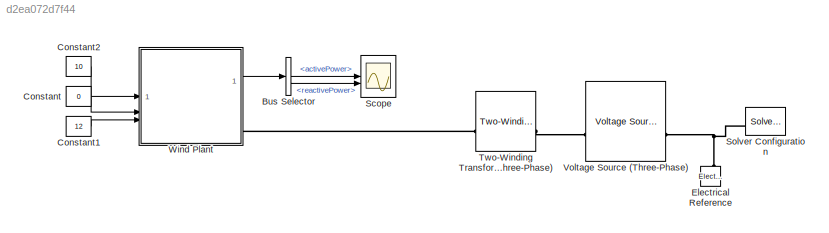
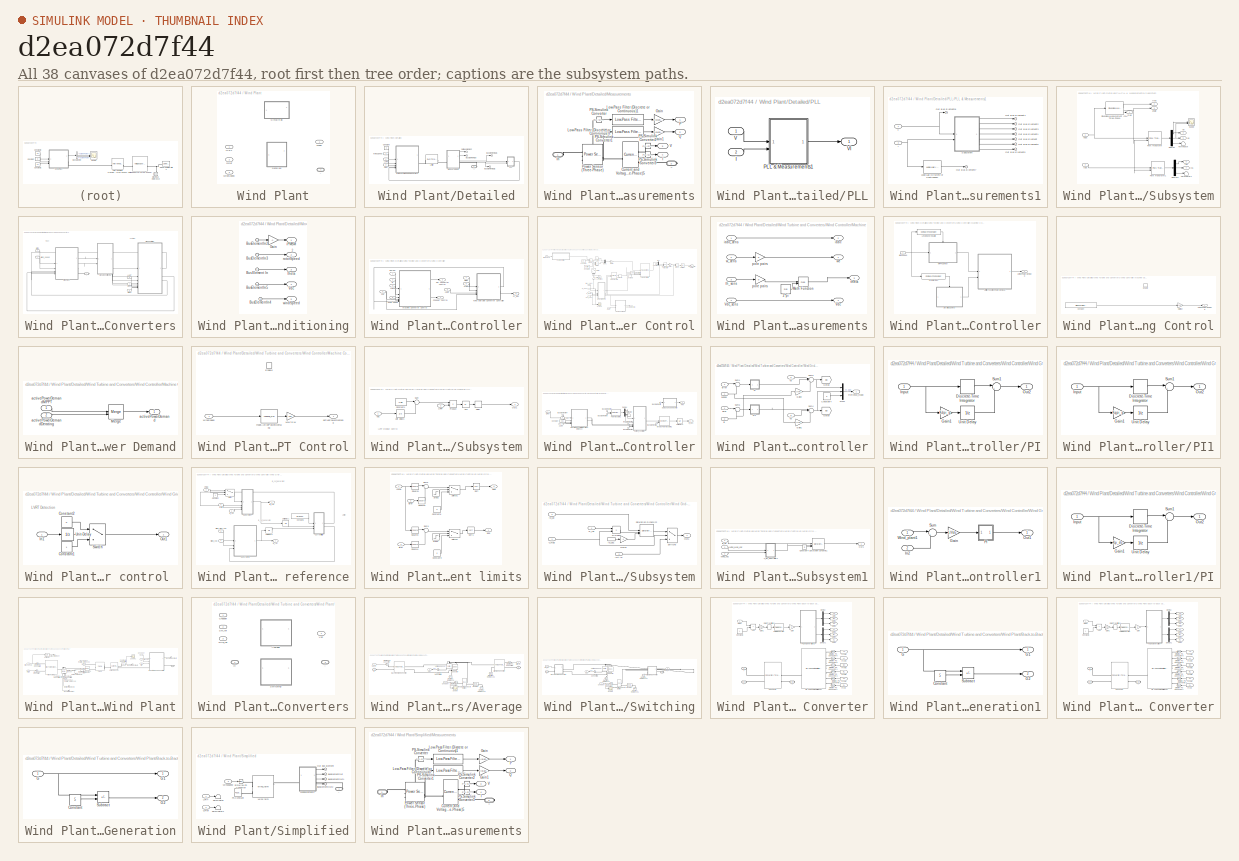
[diagram: thumbnail index - all 38 canvases of the model, root first then tree order]
MODEL slx_d2ea072d7f44
KIND model
CONFIG AbsTol = auto
CONFIG EnableMultiTasking = off
CONFIG FixedStep = 5e-5
CONFIG MaxStep = auto
CONFIG MinStep = auto
CONFIG PostLoadFcn = WindFarmParam;
CONFIG RelTol = 1e-3
CONFIG SampleTimeConstraint = Unconstrained
CONFIG SolverName = VariableStepAuto
CONFIG StartTime = 0.0
CONFIG StopTime = 5
BLOCK [BusSelector] Bus Selector
  OutputSignals = activePower,reactivePower
BLOCK [Constant] Constant
  Value = 0
BLOCK [Constant] Constant1
  Value = 12
BLOCK [Constant] Constant2
  Value = 10
BLOCK [Reference] Electrical Reference  REF=fl_lib/Electrical/Electrical Elements/Electrical Reference
  NameLocation = right
  SourceBlock = fl_lib/Electrical/Electrical Elements/Electrical Reference
  SourceType = Electrical Reference
BLOCK [Scope] Scope
  ActiveDisplayYMaximum = 1.7870126734384418E+10
  ActiveDisplayYMinimum = -1.9855696371551242E+9
  DataLoggingVariableName = ScopeData1
  Floating = off
  GraphicalSettings = {"AxesScalingProperties":{"AlignXAxis":"Center","AlignYAxis":"Center","AutoScaleXAxisLimits":false,"AxesScaling":"Manual","AxesScalingNumUpdates":10,"ExpandOnly":true,"ScaleAxesLimitsAtStop":false,"XAxisDataRange":100,"YAxisDataRange":80},"DisplayProperties":{"ColorOrder":["auto","auto","auto","auto","auto","auto","auto","auto","auto","auto","auto","auto","auto","auto","auto","auto","auto","auto",...<+2748ch>
  LayoutDimensionsString = [2,1]
  MultipleDisplayCache = [{"MaxYLimMag":1.7870126734384418E+10,"MaxYLimReal":1.7870126734384418E+10,"MinYLimMag":0,"MinYLimReal":-1.9855696371551242E+9,"PlotAsMagnitudePhase":false,"ShowGrid":true,"ShowLegend":false,"Title":"%<SignalLabel>","YLabel":""},{"MaxYLimMag":583745.29973868991,"MaxYLimReal":583745.29973868991,"MinYLimMag":0,"MinYLimReal":-77127.539891162378,"PlotAsMagnitudePhase":false,"ShowGrid":true,"ShowLegend...<+46ch>
  NumInputPorts = 2
  ScopeFrameLocation = window
  WasSavedAsWebScope = on
  WindowPosition = [2189.000000,76.000000,1282.000000,684.000000,]
BLOCK [Reference] Solver Configuration  REF=nesl_utility/Solver
Configuration
  NameLocation = top
  SourceBlock = nesl_utility/Solver\nConfiguration
  SourceType = Solver\nConfiguration
BLOCK [Reference] Two-Winding Transformer (Three-Phase)  REF=ee_lib/Passive/Transformers/Two-Winding
Transformer
(Three-Phase)
  SourceBlock = ee_lib/Passive/Transformers/Two-Winding\nTransformer\n(Three-Phase)
  SourceType = Two-Winding\nTransformer\n(Three-Phase)
BLOCK [Reference] Voltage Source (Three-Phase)  REF=ee_lib/Sources/Voltage
Source
(Three-Phase)
  NameLocation = top
  SourceBlock = ee_lib/Sources/Voltage\nSource\n(Three-Phase)
  SourceType = Voltage\nSource\n(Three-Phase)
BLOCK [SubSystem] Wind Plant
  CopyFcn = set_param(gcbh,'LinkStatus','none');
  LabelModeActiveChoice = Detailed
  Variant = on
  VariantControlMode = label
BLOCK [SubSystem] Wind Plant/Detailed
  CopyFcn = set_param(gcbh,'LinkStatus','none');
  VariantControl = Detailed
BLOCK [Outport] Wind Plant/Detailed/BusElementOut
BLOCK [Outport] Wind Plant/Detailed/BusElementOut1
BLOCK [Outport] Wind Plant/Detailed/BusElementOut2
BLOCK [Constant] Wind Plant/Detailed/Constant
  Value = 0
BLOCK [Reference] Wind Plant/Detailed/L Filter  REF=ee_lib/Passive/RLC Assemblies/RLC (Three-Phase)
  SourceBlock = ee_lib/Passive/RLC Assemblies/RLC (Three-Phase)
  SourceType = RLC (Three-Phase)
BLOCK [Inport] Wind Plant/Detailed/LVRT
BLOCK [SubSystem] Wind Plant/Detailed/Measurements
BLOCK [Reference] Wind Plant/Detailed/Measurements/Current and Voltage Sensor (Three-Phase)5  REF=ee_lib/Sensors &
Transducers/Current and Voltage
Sensor (Three-Phase)
  SourceBlock = ee_lib/Sensors &\nTransducers/Current and Voltage\nSensor (Three-Phase)
  SourceType = Current and Voltage\nSensor (Three-Phase)
BLOCK [Gain] Wind Plant/Detailed/Measurements/Gain
  Gain = 1/(plantRating*1000)
BLOCK [Gain] Wind Plant/Detailed/Measurements/Gain1
  Gain = 1/(plantRating*1000)
BLOCK [Outport] Wind Plant/Detailed/Measurements/I
  Port = 4
BLOCK [PMIOPort] Wind Plant/Detailed/Measurements/In
  Side = Left
BLOCK [Reference] Wind Plant/Detailed/Measurements/Low-Pass Filter (Discrete or Continuous)1  REF=eeGeneralControl/Low-Pass Filter
(Discrete or Continuous)
  SourceBlock = eeGeneralControl/Low-Pass Filter\n(Discrete or Continuous)
  SourceType = Low-Pass Filter (Discrete or Continuous)
BLOCK [Reference] Wind Plant/Detailed/Measurements/Low-Pass Filter (Discrete or Continuous)2  REF=eeGeneralControl/Low-Pass Filter
(Discrete or Continuous)
  SourceBlock = eeGeneralControl/Low-Pass Filter\n(Discrete or Continuous)
  SourceType = Low-Pass Filter (Discrete or Continuous)
BLOCK [Outport] Wind Plant/Detailed/Measurements/P
BLOCK [Reference] Wind Plant/Detailed/Measurements/PS-Simulink Converter  REF=nesl_utility/PS-Simulink
Converter
  SourceBlock = nesl_utility/PS-Simulink\nConverter
  SourceType = PS-Simulink\nConverter
BLOCK [Reference] Wind Plant/Detailed/Measurements/PS-Simulink Converter1  REF=nesl_utility/PS-Simulink
Converter
  SourceBlock = nesl_utility/PS-Simulink\nConverter
  SourceType = PS-Simulink\nConverter
BLOCK [Reference] Wind Plant/Detailed/Measurements/PS-Simulink Converter2  REF=nesl_utility/PS-Simulink
Converter
  SourceBlock = nesl_utility/PS-Simulink\nConverter
  SourceType = PS-Simulink\nConverter
BLOCK [Reference] Wind Plant/Detailed/Measurements/PS-Simulink Converter3  REF=nesl_utility/PS-Simulink
Converter
  SourceBlock = nesl_utility/PS-Simulink\nConverter
  SourceType = PS-Simulink\nConverter
BLOCK [Reference] Wind Plant/Detailed/Measurements/Power Sensor (Three-Phase)  REF=ee_lib/Sensors &
Transducers/Power Sensor
(Three-Phase)
  SourceBlock = ee_lib/Sensors &\nTransducers/Power Sensor\n(Three-Phase)
  SourceType = Power Sensor\n(Three-Phase)
BLOCK [Outport] Wind Plant/Detailed/Measurements/Q
  Port = 2
BLOCK [Outport] Wind Plant/Detailed/Measurements/V
  Port = 3
BLOCK [PMIOPort] Wind Plant/Detailed/Measurements/~
  Port = 2
  Side = Right
BLOCK [Outport] Wind Plant/Detailed/Out Bus Element
BLOCK [SubSystem] Wind Plant/Detailed/PLL
BLOCK [Inport] Wind Plant/Detailed/PLL/I
  Port = 2
BLOCK [SubSystem] Wind Plant/Detailed/PLL/PLL & Measurements1
  NameLocation = top
BLOCK [Inport] Wind Plant/Detailed/PLL/PLL & Measurements1/I
  Port = 2
BLOCK [Reference] Wind Plant/Detailed/PLL/PLL & Measurements1/Lead-Lag (Discrete or Continuous)  REF=eeGeneralControl/Lead-Lag
(Discrete or Continuous)
  SourceBlock = eeGeneralControl/Lead-Lag\n(Discrete or Continuous)
  SourceType = Lead-Lag (Discrete or Continuous)
BLOCK [Outport] Wind Plant/Detailed/PLL/PLL & Measurements1/Out Bus Element
BLOCK [Outport] Wind Plant/Detailed/PLL/PLL & Measurements1/Out Bus Element1
BLOCK [Outport] Wind Plant/Detailed/PLL/PLL & Measurements1/Out Bus Element2
BLOCK [Outport] Wind Plant/Detailed/PLL/PLL & Measurements1/Out Bus Element3
BLOCK [Outport] Wind Plant/Detailed/PLL/PLL & Measurements1/Out Bus Element4
BLOCK [Outport] Wind Plant/Detailed/PLL/PLL & Measurements1/Out Bus Element5
BLOCK [Outport] Wind Plant/Detailed/PLL/PLL & Measurements1/Out Bus Element6
BLOCK [Outport] Wind Plant/Detailed/PLL/PLL & Measurements1/Out Bus Element7
BLOCK [Outport] Wind Plant/Detailed/PLL/PLL & Measurements1/Out Bus Element8
BLOCK [SubSystem] Wind Plant/Detailed/PLL/PLL & Measurements1/Subsystem
BLOCK [Demux] Wind Plant/Detailed/PLL/PLL & Measurements1/Subsystem/Demux
  Outputs = 3
BLOCK [Demux] Wind Plant/Detailed/PLL/PLL & Measurements1/Subsystem/Demux1
  Outputs = 3
BLOCK [Inport] Wind Plant/Detailed/PLL/PLL & Measurements1/Subsystem/Iabc
  Port = 2
BLOCK [Outport] Wind Plant/Detailed/PLL/PLL & Measurements1/Subsystem/Id1
  NameLocation = top
  Port = 6
BLOCK [Outport] Wind Plant/Detailed/PLL/PLL & Measurements1/Subsystem/Iq1
  NameLocation = top
  Port = 7
BLOCK [Reference] Wind Plant/Detailed/PLL/PLL & Measurements1/Subsystem/Park Transform  REF=eeTransforms/Park Transform
  SourceBlock = eeTransforms/Park Transform
  SourceType = Park Transform
BLOCK [Reference] Wind Plant/Detailed/PLL/PLL & Measurements1/Subsystem/Park Transform1  REF=eeTransforms/Park Transform
  SourceBlock = eeTransforms/Park Transform
  SourceType = Park Transform
BLOCK [Scope] Wind Plant/Detailed/PLL/PLL & Measurements1/Subsystem/Scope
  ActiveDisplayYMaximum = 1.02793
  ActiveDisplayYMinimum = 0.95416
  DataLoggingVariableName = ScopeData5
  Floating = off
  GraphicalSettings = {"Style":{"BackgroundColor":[0.12941176470588237,0.12941176470588237,0.12941176470588237],"AxesColor":[0.07058823529411765,0.07058823529411765,0.07058823529411765],"LabelsColor":[0.8509803921568627,0.8509803921568627,0.8509803921568627],"PreserveColors":false,"Visible":[true,true],"LineStyle":["-","-"],"LineWidth":[1.5,1.5],"BarWidth":[0.9,0.9],"LineColor":["auto","auto"],"LineFaceAlpha":[1,1],"Li...<+2339ch>
  LayoutDimensionsString = [2 1]
  MultipleDisplayCache = [{"MaxYLimMag":1.02793,"MaxYLimReal":1.02793,"MinYLimMag":0.95416,"MinYLimReal":0.95416,"PlotAsMagnitudePhase":false,"ShowGrid":true,"ShowLegend":false,"Title":"%<SignalLabel>","YLabel":""},{"MaxYLimMag":1.36074,"MaxYLimReal":0.03496,"MinYLimMag":0,"MinYLimReal":-0.0351,"PlotAsMagnitudePhase":false,"ShowGrid":true,"ShowLegend":false,"Title":"%<SignalLabel>","YLabel":""}]
  NumInputPorts = 2
  ScopeFrameLocation = window
  WasSavedAsWebScope = on
  WindowPosition = [358.000000,148.000000,564.000000,431.000000,]
BLOCK [Reference] Wind Plant/Detailed/PLL/PLL & Measurements1/Subsystem/Sinusoidal Measurement (PLL, Three-Phase)  REF=eeSinusoidalMeasurementV2/Sinusoidal Measurement
(PLL, Three-Phase)
  SourceBlock = eeSinusoidalMeasurementV2/Sinusoidal Measurement\n(PLL, Three-Phase)
  SourceType = Sinusoidal Measurement (PLL, Three-Phase)
BLOCK [Terminator] Wind Plant/Detailed/PLL/PLL & Measurements1/Subsystem/Terminator
BLOCK [Terminator] Wind Plant/Detailed/PLL/PLL & Measurements1/Subsystem/Terminator1
BLOCK [Inport] Wind Plant/Detailed/PLL/PLL & Measurements1/Subsystem/Vabc
BLOCK [Outport] Wind Plant/Detailed/PLL/PLL & Measurements1/Subsystem/Vd
  NameLocation = top
  Port = 4
BLOCK [Outport] Wind Plant/Detailed/PLL/PLL & Measurements1/Subsystem/Vq
  NameLocation = top
  Port = 5
BLOCK [Outport] Wind Plant/Detailed/PLL/PLL & Measurements1/Subsystem/angle
  Port = 3
BLOCK [Outport] Wind Plant/Detailed/PLL/PLL & Measurements1/Subsystem/freq
  NameLocation = top
  Port = 2
BLOCK [Outport] Wind Plant/Detailed/PLL/PLL & Measurements1/Subsystem/mag
BLOCK [Inport] Wind Plant/Detailed/PLL/PLL & Measurements1/V
BLOCK [Inport] Wind Plant/Detailed/PLL/V
BLOCK [Outport] Wind Plant/Detailed/PLL/VI
BLOCK [Inport] Wind Plant/Detailed/QRef
  Port = 2
BLOCK [SubSystem] Wind Plant/Detailed/Wind Turbine and Converters
BLOCK [Inport] Wind Plant/Detailed/Wind Turbine and Converters/LVRT
  Port = 3
BLOCK [Inport] Wind Plant/Detailed/Wind Turbine and Converters/QRef
  Port = 4
BLOCK [SubSystem] Wind Plant/Detailed/Wind Turbine and Converters/Signal Conditioning
BLOCK [Inport] Wind Plant/Detailed/Wind Turbine and Converters/Signal Conditioning/Bus Element In
BLOCK [Inport] Wind Plant/Detailed/Wind Turbine and Converters/Signal Conditioning/BusElementIn2
BLOCK [Inport] Wind Plant/Detailed/Wind Turbine and Converters/Signal Conditioning/BusElementIn3
BLOCK [Inport] Wind Plant/Detailed/Wind Turbine and Converters/Signal Conditioning/BusElementIn4
  Port = 2
BLOCK [Inport] Wind Plant/Detailed/Wind Turbine and Converters/Signal Conditioning/BusElementIn5
  Port = 2
BLOCK [Gain] Wind Plant/Detailed/Wind Turbine and Converters/Signal Conditioning/Gain
  Gain = -1
BLOCK [Outport] Wind Plant/Detailed/Wind Turbine and Converters/Signal Conditioning/Vdc
  Port = 4
BLOCK [Outport] Wind Plant/Detailed/Wind Turbine and Converters/Signal Conditioning/iPMSM
BLOCK [Outport] Wind Plant/Detailed/Wind Turbine and Converters/Signal Conditioning/rotorSpeed
  Port = 2
BLOCK [Outport] Wind Plant/Detailed/Wind Turbine and Converters/Signal Conditioning/theta
  Port = 3
BLOCK [Outport] Wind Plant/Detailed/Wind Turbine and Converters/Signal Conditioning/windSpeed
  Port = 5
BLOCK [Inport] Wind Plant/Detailed/Wind Turbine and Converters/VIBus
  Port = 5
BLOCK [SubSystem] Wind Plant/Detailed/Wind Turbine and Converters/Wind Controller
BLOCK [Outport] Wind Plant/Detailed/Wind Turbine and Converters/Wind Controller/Chopper Control
BLOCK [Inport] Wind Plant/Detailed/Wind Turbine and Converters/Wind Controller/LVRT
  Port = 6
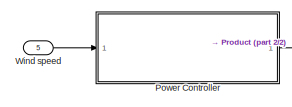
[diagram: Wind Plant/Detailed/Wind Turbine and Converters/Wind Controller/Machine Converter Control - part 1/2, top left region]
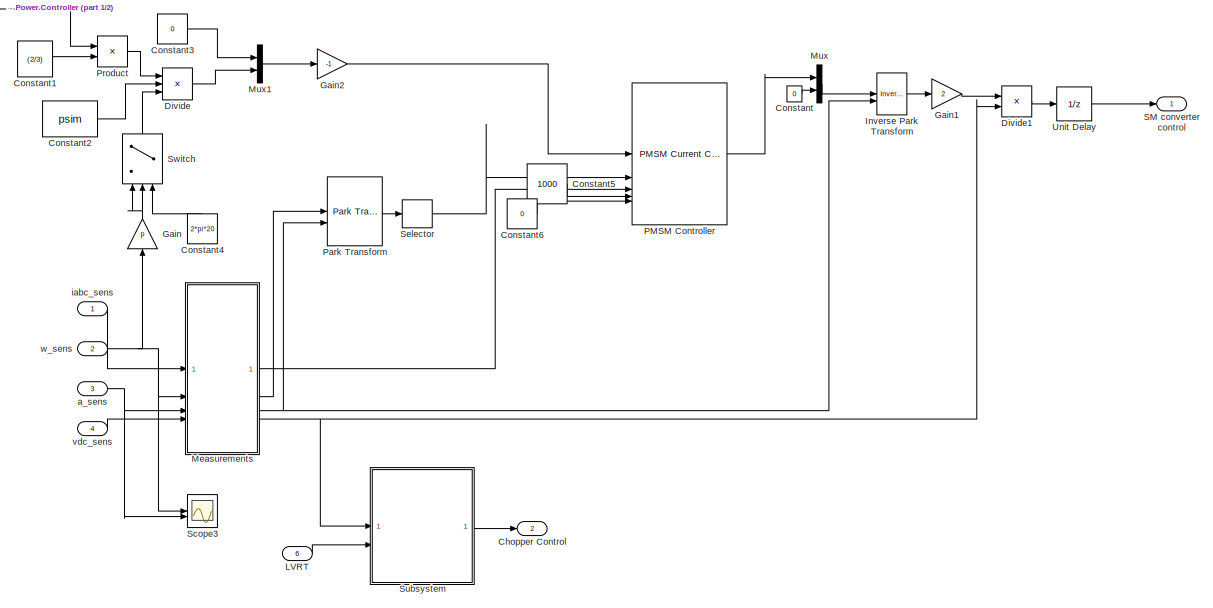
[diagram: Wind Plant/Detailed/Wind Turbine and Converters/Wind Controller/Machine Converter Control - part 2/2, most of the canvas]
BLOCK [SubSystem] Wind Plant/Detailed/Wind Turbine and Converters/Wind Controller/Machine Converter Control
BLOCK [Outport] Wind Plant/Detailed/Wind Turbine and Converters/Wind Controller/Machine Converter Control/Chopper Control
  Port = 2
BLOCK [Constant] Wind Plant/Detailed/Wind Turbine and Converters/Wind Controller/Machine Converter Control/Constant
  SampleTime = -1
  Value = 0
BLOCK [Constant] Wind Plant/Detailed/Wind Turbine and Converters/Wind Controller/Machine Converter Control/Constant1
  Value = (2/3)
BLOCK [Constant] Wind Plant/Detailed/Wind Turbine and Converters/Wind Controller/Machine Converter Control/Constant2
  Value = psim
BLOCK [Constant] Wind Plant/Detailed/Wind Turbine and Converters/Wind Controller/Machine Converter Control/Constant3
  Value = 0
BLOCK [Constant] Wind Plant/Detailed/Wind Turbine and Converters/Wind Controller/Machine Converter Control/Constant4
  NameLocation = right
  Value = 2*pi*20
BLOCK [Constant] Wind Plant/Detailed/Wind Turbine and Converters/Wind Controller/Machine Converter Control/Constant5
  SampleTime = -1
  Value = 1000
  VectorParams1D = off
BLOCK [Constant] Wind Plant/Detailed/Wind Turbine and Converters/Wind Controller/Machine Converter Control/Constant6
  Value = 0
BLOCK [Product] Wind Plant/Detailed/Wind Turbine and Converters/Wind Controller/Machine Converter Control/Divide
  Inputs = *//
BLOCK [Product] Wind Plant/Detailed/Wind Turbine and Converters/Wind Controller/Machine Converter Control/Divide1
  Inputs = */
BLOCK [Gain] Wind Plant/Detailed/Wind Turbine and Converters/Wind Controller/Machine Converter Control/Gain
  Gain = p
  NameLocation = right
BLOCK [Gain] Wind Plant/Detailed/Wind Turbine and Converters/Wind Controller/Machine Converter Control/Gain1
  Gain = 2
BLOCK [Gain] Wind Plant/Detailed/Wind Turbine and Converters/Wind Controller/Machine Converter Control/Gain2
  Gain = -1
BLOCK [Reference] Wind Plant/Detailed/Wind Turbine and Converters/Wind Controller/Machine Converter Control/Inverse Park Transform  REF=eeTransforms/Inverse
Park Transform
  SourceBlock = eeTransforms/Inverse\nPark Transform
  SourceType = Inverse Park Transform
BLOCK [Inport] Wind Plant/Detailed/Wind Turbine and Converters/Wind Controller/Machine Converter Control/LVRT
  Port = 6
BLOCK [SubSystem] Wind Plant/Detailed/Wind Turbine and Converters/Wind Controller/Machine Converter Control/Measurements
BLOCK [Constant] Wind Plant/Detailed/Wind Turbine and Converters/Wind Controller/Machine Converter Control/Measurements/2*pi
  SampleTime = -1
  Value = 2*pi
BLOCK [Math] Wind Plant/Detailed/Wind Turbine and Converters/Wind Controller/Machine Converter Control/Measurements/Math Function
  Operator = mod
  SignedPower = on
BLOCK [Outport] Wind Plant/Detailed/Wind Turbine and Converters/Wind Controller/Machine Converter Control/Measurements/Vdc
  Port = 4
  VectorParamsAs1DForOutWhenUnconnected = off
BLOCK [Inport] Wind Plant/Detailed/Wind Turbine and Converters/Wind Controller/Machine Converter Control/Measurements/Vdc_sens
  Port = 4
BLOCK [Outport] Wind Plant/Detailed/Wind Turbine and Converters/Wind Controller/Machine Converter Control/Measurements/iabc
  Port = 2
  VectorParamsAs1DForOutWhenUnconnected = off
BLOCK [Inport] Wind Plant/Detailed/Wind Turbine and Converters/Wind Controller/Machine Converter Control/Measurements/iabc_sens
BLOCK [Gain] Wind Plant/Detailed/Wind Turbine and Converters/Wind Controller/Machine Converter Control/Measurements/pole pairs
  Gain = p
BLOCK [Gain] Wind Plant/Detailed/Wind Turbine and Converters/Wind Controller/Machine Converter Control/Measurements/pole pairs 
  Gain = p
BLOCK [Inport] Wind Plant/Detailed/Wind Turbine and Converters/Wind Controller/Machine Converter Control/Measurements/th_sens
  Port = 3
BLOCK [Outport] Wind Plant/Detailed/Wind Turbine and Converters/Wind Controller/Machine Converter Control/Measurements/theta
  Port = 3
  VectorParamsAs1DForOutWhenUnconnected = off
BLOCK [Inport] Wind Plant/Detailed/Wind Turbine and Converters/Wind Controller/Machine Converter Control/Measurements/w_sens
  Port = 2
BLOCK [Outport] Wind Plant/Detailed/Wind Turbine and Converters/Wind Controller/Machine Converter Control/Measurements/we
  VectorParamsAs1DForOutWhenUnconnected = off
BLOCK [Mux] Wind Plant/Detailed/Wind Turbine and Converters/Wind Controller/Machine Converter Control/Mux
  DisplayOption = bar
  Inputs = 2
BLOCK [Mux] Wind Plant/Detailed/Wind Turbine and Converters/Wind Controller/Machine Converter Control/Mux1
  DisplayOption = bar
  Inputs = 2
BLOCK [Reference] Wind Plant/Detailed/Wind Turbine and Converters/Wind Controller/Machine Converter Control/PMSM Controller  REF=eePmsmCurrentController/PMSM Current Controller
with Pre-Control
  SourceBlock = eePmsmCurrentController/PMSM Current Controller\nwith Pre-Control
  SourceType = PMSM Current Controller with Pre-Control
BLOCK [Reference] Wind Plant/Detailed/Wind Turbine and Converters/Wind Controller/Machine Converter Control/Park Transform  REF=eeTransforms/Park Transform
  SourceBlock = eeTransforms/Park Transform
  SourceType = Park Transform
BLOCK [SubSystem] Wind Plant/Detailed/Wind Turbine and Converters/Wind Controller/Machine Converter Control/Power Controller
BLOCK [SubSystem] Wind Plant/Detailed/Wind Turbine and Converters/Wind Controller/Machine Converter Control/Power Controller/Derating Control
BLOCK [Constant] Wind Plant/Detailed/Wind Turbine and Converters/Wind Controller/Machine Converter Control/Power Controller/Derating Control/Constant
  Value = windTurbine.turbineRatedPower
BLOCK [EnablePort] Wind Plant/Detailed/Wind Turbine and Converters/Wind Controller/Machine Converter Control/Power Controller/Derating Control/Enable
  StatesWhenEnabling = reset
BLOCK [Gain] Wind Plant/Detailed/Wind Turbine and Converters/Wind Controller/Machine Converter Control/Power Controller/Derating Control/MW to W
  Gain = 1e6
BLOCK [Outport] Wind Plant/Detailed/Wind Turbine and Converters/Wind Controller/Machine Converter Control/Power Controller/Derating Control/activePowerDemand
BLOCK [Reference] Wind Plant/Detailed/Wind Turbine and Converters/Wind Controller/Machine Converter Control/Power Controller/Greater than  REF=simulink/Logic and Bit
Operations/Compare
To Constant
  SourceBlock = simulink/Logic and Bit\nOperations/Compare\nTo Constant
  SourceType = Compare To Constant
BLOCK [Reference] Wind Plant/Detailed/Wind Turbine and Converters/Wind Controller/Machine Converter Control/Power Controller/Less than or equal to  REF=simulink/Logic and Bit
Operations/Compare
To Constant
  SourceBlock = simulink/Logic and Bit\nOperations/Compare\nTo Constant
  SourceType = Compare To Constant
BLOCK [SubSystem] Wind Plant/Detailed/Wind Turbine and Converters/Wind Controller/Machine Converter Control/Power Controller/Limiter Function Power Demand
BLOCK [Merge] Wind Plant/Detailed/Wind Turbine and Converters/Wind Controller/Machine Converter Control/Power Controller/Limiter Function Power Demand/Merge
BLOCK [Outport] Wind Plant/Detailed/Wind Turbine and Converters/Wind Controller/Machine Converter Control/Power Controller/Limiter Function Power Demand/activePowerDemand
BLOCK [Inport] Wind Plant/Detailed/Wind Turbine and Converters/Wind Controller/Machine Converter Control/Power Controller/Limiter Function Power Demand/activePowerDemandDerating
  Port = 2
BLOCK [Inport] Wind Plant/Detailed/Wind Turbine and Converters/Wind Controller/Machine Converter Control/Power Controller/Limiter Function Power Demand/activePowerDemandMPPT
  NameLocation = top
BLOCK [SubSystem] Wind Plant/Detailed/Wind Turbine and Converters/Wind Controller/Machine Converter Control/Power Controller/MPPT Control
BLOCK [EnablePort] Wind Plant/Detailed/Wind Turbine and Converters/Wind Controller/Machine Converter Control/Power Controller/MPPT Control/Enable
  StatesWhenEnabling = reset
BLOCK [Gain] Wind Plant/Detailed/Wind Turbine and Converters/Wind Controller/Machine Converter Control/Power Controller/MPPT Control/MW to W
  Gain = 1e6
BLOCK [Outport] Wind Plant/Detailed/Wind Turbine and Converters/Wind Controller/Machine Converter Control/Power Controller/MPPT Control/activePowerDemand
BLOCK [Lookup_n-D] Wind Plant/Detailed/Wind Turbine and Converters/Wind Controller/Machine Converter Control/Power Controller/MPPT Control/mpptActivePowerDemand
  BreakpointsForDimension1 = mpptWindSpeed
  InputPortMap = u0
  InternalRulePriority = Speed
  NameLocation = top
  NumberOfTableDimensions = 1
  RndMeth = Simplest
  Table = mpptPower
BLOCK [Inport] Wind Plant/Detailed/Wind Turbine and Converters/Wind Controller/Machine Converter Control/Power Controller/MPPT Control/windSpeed
BLOCK [Outport] Wind Plant/Detailed/Wind Turbine and Converters/Wind Controller/Machine Converter Control/Power Controller/activePowerDemand
BLOCK [Inport] Wind Plant/Detailed/Wind Turbine and Converters/Wind Controller/Machine Converter Control/Power Controller/windSpeed
BLOCK [Product] Wind Plant/Detailed/Wind Turbine and Converters/Wind Controller/Machine Converter Control/Product
BLOCK [Outport] Wind Plant/Detailed/Wind Turbine and Converters/Wind Controller/Machine Converter Control/SM converter control
  VectorParamsAs1DForOutWhenUnconnected = off
BLOCK [Scope] Wind Plant/Detailed/Wind Turbine and Converters/Wind Controller/Machine Converter Control/Scope3
  ActiveDisplayYMaximum = 3.2068078785969831
  ActiveDisplayYMinimum = -0.53154558960654574
  DataLoggingVariableName = ScopeData23
  Floating = off
  GraphicalSettings = {"Style":{"BackgroundColor":[0.12941176470588237,0.12941176470588237,0.12941176470588237],"AxesColor":[0.07058823529411765,0.07058823529411765,0.07058823529411765],"LabelsColor":[0.8509803921568627,0.8509803921568627,0.8509803921568627],"PreserveColors":false,"Visible":[true,true],"LineStyle":["-","-"],"LineWidth":[1.5,1.5],"BarWidth":[0.9,0.9],"LineColor":["auto","auto"],"LineFaceAlpha":[1,1],"Li...<+2423ch>
  LayoutDimensionsString = [2,1]
  MultipleDisplayCache = [{"MaxYLimMag":3.2068078785969831,"MaxYLimReal":3.2068078785969831,"MinYLimMag":0,"MinYLimReal":-0.53154558960654574,"PlotAsMagnitudePhase":false,"ShowGrid":true,"ShowLegend":false,"Title":"%<SignalLabel>","YLabel":""},{"MaxYLimMag":15.178575557276858,"MaxYLimReal":15.178575557276858,"MinYLimMag":0,"MinYLimReal":-1.6865194156347854,"PlotAsMagnitudePhase":false,"ShowGrid":true,"ShowLegend":false,"T...<+36ch>
  NumInputPorts = 2
  ScopeFrameLocation = window
  WasSavedAsWebScope = on
BLOCK [Selector] Wind Plant/Detailed/Wind Turbine and Converters/Wind Controller/Machine Converter Control/Selector
  IndexOptions = Index vector (dialog)
  Indices = [1 2]
  InputPortWidth = 3
  OutputSizes = 1
BLOCK [SubSystem] Wind Plant/Detailed/Wind Turbine and Converters/Wind Controller/Machine Converter Control/Subsystem
BLOCK [Abs] Wind Plant/Detailed/Wind Turbine and Converters/Wind Controller/Machine Converter Control/Subsystem/Abs
  SaturateOnIntegerOverflow = off
BLOCK [Constant] Wind Plant/Detailed/Wind Turbine and Converters/Wind Controller/Machine Converter Control/Subsystem/Constant1
  Value = Vdc
BLOCK [Inport] Wind Plant/Detailed/Wind Turbine and Converters/Wind Controller/Machine Converter Control/Subsystem/LVRT
  Port = 2
BLOCK [Outport] Wind Plant/Detailed/Wind Turbine and Converters/Wind Controller/Machine Converter Control/Subsystem/Out1
BLOCK [Product] Wind Plant/Detailed/Wind Turbine and Converters/Wind Controller/Machine Converter Control/Subsystem/Product
BLOCK [Relay] Wind Plant/Detailed/Wind Turbine and Converters/Wind Controller/Machine Converter Control/Subsystem/Relay
  OffSwitchValue = 0.01*Vdc
  OnSwitchValue = 0.01001*Vdc
BLOCK [Sum] Wind Plant/Detailed/Wind Turbine and Converters/Wind Controller/Machine Converter Control/Subsystem/Sum
  Inputs = |+-
BLOCK [UnitDelay] Wind Plant/Detailed/Wind Turbine and Converters/Wind Controller/Machine Converter Control/Subsystem/Unit Delay1
  HasFrameUpgradeWarning = on
  SampleTime = -1
BLOCK [Inport] Wind Plant/Detailed/Wind Turbine and Converters/Wind Controller/Machine Converter Control/Subsystem/Vdc
BLOCK [Switch] Wind Plant/Detailed/Wind Turbine and Converters/Wind Controller/Machine Converter Control/Switch
  Criteria = u2 ~= 0
  InputSameDT = off
  NameLocation = right
  SaturateOnIntegerOverflow = off
BLOCK [UnitDelay] Wind Plant/Detailed/Wind Turbine and Converters/Wind Controller/Machine Converter Control/Unit Delay
  HasFrameUpgradeWarning = on
  SampleTime = -1
BLOCK [Inport] Wind Plant/Detailed/Wind Turbine and Converters/Wind Controller/Machine Converter Control/Wind speed
  Port = 5
BLOCK [Inport] Wind Plant/Detailed/Wind Turbine and Converters/Wind Controller/Machine Converter Control/a_sens
  Port = 3
BLOCK [Inport] Wind Plant/Detailed/Wind Turbine and Converters/Wind Controller/Machine Converter Control/iabc_sens
BLOCK [Inport] Wind Plant/Detailed/Wind Turbine and Converters/Wind Controller/Machine Converter Control/vdc_sens
  Port = 4
BLOCK [Inport] Wind Plant/Detailed/Wind Turbine and Converters/Wind Controller/Machine Converter Control/w_sens
  Port = 2
BLOCK [Inport] Wind Plant/Detailed/Wind Turbine and Converters/Wind Controller/QRef
  Port = 7
BLOCK [Outport] Wind Plant/Detailed/Wind Turbine and Converters/Wind Controller/SM converter control
  Port = 2
BLOCK [Inport] Wind Plant/Detailed/Wind Turbine and Converters/Wind Controller/VIbus
  Port = 8
BLOCK [SubSystem] Wind Plant/Detailed/Wind Turbine and Converters/Wind Controller/Wind Grid-side Converter Controller
BLOCK [Inport] Wind Plant/Detailed/Wind Turbine and Converters/Wind Controller/Wind Grid-side Converter Controller/BusElementIn
  Port = 2
BLOCK [Inport] Wind Plant/Detailed/Wind Turbine and Converters/Wind Controller/Wind Grid-side Converter Controller/BusElementIn1
  Port = 2
BLOCK [Inport] Wind Plant/Detailed/Wind Turbine and Converters/Wind Controller/Wind Grid-side Converter Controller/BusElementIn2
  Port = 2
BLOCK [Inport] Wind Plant/Detailed/Wind Turbine and Converters/Wind Controller/Wind Grid-side Converter Controller/BusElementIn3
  Port = 2
BLOCK [Inport] Wind Plant/Detailed/Wind Turbine and Converters/Wind Controller/Wind Grid-side Converter Controller/BusElementIn4
  Port = 2
BLOCK [Inport] Wind Plant/Detailed/Wind Turbine and Converters/Wind Controller/Wind Grid-side Converter Controller/BusElementIn5
  Port = 2
BLOCK [Inport] Wind Plant/Detailed/Wind Turbine and Converters/Wind Controller/Wind Grid-side Converter Controller/BusElementIn6
  Port = 2
BLOCK [Constant] Wind Plant/Detailed/Wind Turbine and Converters/Wind Controller/Wind Grid-side Converter Controller/Constant
  Value = Vdc
BLOCK [SubSystem] Wind Plant/Detailed/Wind Turbine and Converters/Wind Controller/Wind Grid-side Converter Controller/Current_controller
BLOCK [Constant] Wind Plant/Detailed/Wind Turbine and Converters/Wind Controller/Wind Grid-side Converter Controller/Current_controller/Constant4
  Value = 0
BLOCK [Gain] Wind Plant/Detailed/Wind Turbine and Converters/Wind Controller/Wind Grid-side Converter Controller/Current_controller/Gain1
  Gain = 2*1*pi*frequency*inductance/baseImpedance
BLOCK [Gain] Wind Plant/Detailed/Wind Turbine and Converters/Wind Controller/Wind Grid-side Converter Controller/Current_controller/Gain2
  Gain = 2*1*pi*frequency*inductance/baseImpedance
BLOCK [Goto] Wind Plant/Detailed/Wind Turbine and Converters/Wind Controller/Wind Grid-side Converter Controller/Current_controller/Goto8
  GotoTag = Ed
BLOCK [Goto] Wind Plant/Detailed/Wind Turbine and Converters/Wind Controller/Wind Grid-side Converter Controller/Current_controller/Goto9
  GotoTag = Eq
BLOCK [Mux] Wind Plant/Detailed/Wind Turbine and Converters/Wind Controller/Wind Grid-side Converter Controller/Current_controller/Mux1
  DisplayOption = bar
  Inputs = 3
BLOCK [SubSystem] Wind Plant/Detailed/Wind Turbine and Converters/Wind Controller/Wind Grid-side Converter Controller/Current_controller/PI
BLOCK [DiscreteIntegrator] Wind Plant/Detailed/Wind Turbine and Converters/Wind Controller/Wind Grid-side Converter Controller/Current_controller/PI/Discrete-Time Integrator
  ICPrevOutput = DiscIntNeverNeededParam
  ICPrevScaledInput = DiscIntNeverNeededParam
  InitialConditionSetting = Auto
  SampleTime = Ts
  gainval = Kdii_g
BLOCK [Gain] Wind Plant/Detailed/Wind Turbine and Converters/Wind Controller/Wind Grid-side Converter Controller/Current_controller/PI/Gain1
  Gain = Kdpi_g
BLOCK [Inport] Wind Plant/Detailed/Wind Turbine and Converters/Wind Controller/Wind Grid-side Converter Controller/Current_controller/PI/Input
BLOCK [Outport] Wind Plant/Detailed/Wind Turbine and Converters/Wind Controller/Wind Grid-side Converter Controller/Current_controller/PI/Out2
BLOCK [Sum] Wind Plant/Detailed/Wind Turbine and Converters/Wind Controller/Wind Grid-side Converter Controller/Current_controller/PI/Sum1
  Inputs = |++
BLOCK [UnitDelay] Wind Plant/Detailed/Wind Turbine and Converters/Wind Controller/Wind Grid-side Converter Controller/Current_controller/PI/Unit Delay
  HasFrameUpgradeWarning = on
  SampleTime = Ts
BLOCK [SubSystem] Wind Plant/Detailed/Wind Turbine and Converters/Wind Controller/Wind Grid-side Converter Controller/Current_controller/PI1
BLOCK [DiscreteIntegrator] Wind Plant/Detailed/Wind Turbine and Converters/Wind Controller/Wind Grid-side Converter Controller/Current_controller/PI1/Discrete-Time Integrator
  ICPrevOutput = DiscIntNeverNeededParam
  ICPrevScaledInput = DiscIntNeverNeededParam
  InitialConditionSetting = Auto
  SampleTime = Ts
  gainval = Kqii_g
BLOCK [Gain] Wind Plant/Detailed/Wind Turbine and Converters/Wind Controller/Wind Grid-side Converter Controller/Current_controller/PI1/Gain1
  Gain = Kqpi_g
BLOCK [Inport] Wind Plant/Detailed/Wind Turbine and Converters/Wind Controller/Wind Grid-side Converter Controller/Current_controller/PI1/Input
BLOCK [Outport] Wind Plant/Detailed/Wind Turbine and Converters/Wind Controller/Wind Grid-side Converter Controller/Current_controller/PI1/Out2
BLOCK [Sum] Wind Plant/Detailed/Wind Turbine and Converters/Wind Controller/Wind Grid-side Converter Controller/Current_controller/PI1/Sum1
  Inputs = |++
BLOCK [UnitDelay] Wind Plant/Detailed/Wind Turbine and Converters/Wind Controller/Wind Grid-side Converter Controller/Current_controller/PI1/Unit Delay
  HasFrameUpgradeWarning = on
  SampleTime = Ts
BLOCK [Outport] Wind Plant/Detailed/Wind Turbine and Converters/Wind Controller/Wind Grid-side Converter Controller/Current_controller/Refrence_mdq0
  IconDisplay = Signal name
BLOCK [Sum] Wind Plant/Detailed/Wind Turbine and Converters/Wind Controller/Wind Grid-side Converter Controller/Current_controller/Sum1
  Inputs = |+-
BLOCK [Sum] Wind Plant/Detailed/Wind Turbine and Converters/Wind Controller/Wind Grid-side Converter Controller/Current_controller/Sum3
  Inputs = |++-
BLOCK [Sum] Wind Plant/Detailed/Wind Turbine and Converters/Wind Controller/Wind Grid-side Converter Controller/Current_controller/Sum4
  Inputs = |+++
BLOCK [Sum] Wind Plant/Detailed/Wind Turbine and Converters/Wind Controller/Wind Grid-side Converter Controller/Current_controller/Sum5
  Inputs = |+-
BLOCK [Inport] Wind Plant/Detailed/Wind Turbine and Converters/Wind Controller/Wind Grid-side Converter Controller/Current_controller/Vd
  Port = 5
BLOCK [Inport] Wind Plant/Detailed/Wind Turbine and Converters/Wind Controller/Wind Grid-side Converter Controller/Current_controller/Vq
  Port = 6
BLOCK [Inport] Wind Plant/Detailed/Wind Turbine and Converters/Wind Controller/Wind Grid-side Converter Controller/Current_controller/iWindd
  IconDisplay = Signal name
BLOCK [Inport] Wind Plant/Detailed/Wind Turbine and Converters/Wind Controller/Wind Grid-side Converter Controller/Current_controller/id-ref
  IconDisplay = Signal name
  Port = 3
BLOCK [Inport] Wind Plant/Detailed/Wind Turbine and Converters/Wind Controller/Wind Grid-side Converter Controller/Current_controller/iq
  IconDisplay = Signal name
  Port = 2
BLOCK [Inport] Wind Plant/Detailed/Wind Turbine and Converters/Wind Controller/Wind Grid-side Converter Controller/Current_controller/iqref
  IconDisplay = Signal name
  Port = 4
BLOCK [SubSystem] Wind Plant/Detailed/Wind Turbine and Converters/Wind Controller/Wind Grid-side Converter Controller/DC Bus Chopper control 
BLOCK [Constant] Wind Plant/Detailed/Wind Turbine and Converters/Wind Controller/Wind Grid-side Converter Controller/DC Bus Chopper control /Constant1
BLOCK [Constant] Wind Plant/Detailed/Wind Turbine and Converters/Wind Controller/Wind Grid-side Converter Controller/DC Bus Chopper control /Constant2
  Value = 0
BLOCK [Inport] Wind Plant/Detailed/Wind Turbine and Converters/Wind Controller/Wind Grid-side Converter Controller/DC Bus Chopper control /In1
BLOCK [Outport] Wind Plant/Detailed/Wind Turbine and Converters/Wind Controller/Wind Grid-side Converter Controller/DC Bus Chopper control /Out1
BLOCK [Switch] Wind Plant/Detailed/Wind Turbine and Converters/Wind Controller/Wind Grid-side Converter Controller/DC Bus Chopper control /Switch
  Criteria = u2 > Threshold
  InputSameDT = off
  SaturateOnIntegerOverflow = off
  Threshold = 0.9
BLOCK [UnitDelay] Wind Plant/Detailed/Wind Turbine and Converters/Wind Controller/Wind Grid-side Converter Controller/DC Bus Chopper control /Unit Delay
  HasFrameUpgradeWarning = on
  SampleTime = -1
BLOCK [SubSystem] Wind Plant/Detailed/Wind Turbine and Converters/Wind Controller/Wind Grid-side Converter Controller/DC voltage controller & current reference
BLOCK [Constant] Wind Plant/Detailed/Wind Turbine and Converters/Wind Controller/Wind Grid-side Converter Controller/DC voltage controller & current reference/Constant
BLOCK [Constant] Wind Plant/Detailed/Wind Turbine and Converters/Wind Controller/Wind Grid-side Converter Controller/DC voltage controller & current reference/Constant1
  Value = iMaxPU
BLOCK [SubSystem] Wind Plant/Detailed/Wind Turbine and Converters/Wind Controller/Wind Grid-side Converter Controller/DC voltage controller & current reference/Current limits
BLOCK [Constant] Wind Plant/Detailed/Wind Turbine and Converters/Wind Controller/Wind Grid-side Converter Controller/DC voltage controller & current reference/Current limits/Constant8
  Value = 0
BLOCK [Constant] Wind Plant/Detailed/Wind Turbine and Converters/Wind Controller/Wind Grid-side Converter Controller/DC voltage controller & current reference/Current limits/Constant9
  Value = 0
BLOCK [Inport] Wind Plant/Detailed/Wind Turbine and Converters/Wind Controller/Wind Grid-side Converter Controller/DC voltage controller & current reference/Current limits/Imax
BLOCK [Sqrt] Wind Plant/Detailed/Wind Turbine and Converters/Wind Controller/Wind Grid-side Converter Controller/DC voltage controller & current reference/Current limits/Sqrt
BLOCK [Sqrt] Wind Plant/Detailed/Wind Turbine and Converters/Wind Controller/Wind Grid-side Converter Controller/DC voltage controller & current reference/Current limits/Sqrt1
BLOCK [Math] Wind Plant/Detailed/Wind Turbine and Converters/Wind Controller/Wind Grid-side Converter Controller/DC voltage controller & current reference/Current limits/Square1
  Operator = square
BLOCK [Math] Wind Plant/Detailed/Wind Turbine and Converters/Wind Controller/Wind Grid-side Converter Controller/DC voltage controller & current reference/Current limits/Square2
  Operator = square
BLOCK [Math] Wind Plant/Detailed/Wind Turbine and Converters/Wind Controller/Wind Grid-side Converter Controller/DC voltage controller & current reference/Current limits/Square3
  Operator = square
BLOCK [Math] Wind Plant/Detailed/Wind Turbine and Converters/Wind Controller/Wind Grid-side Converter Controller/DC voltage controller & current reference/Current limits/Square4
  Operator = square
BLOCK [Step] Wind Plant/Detailed/Wind Turbine and Converters/Wind Controller/Wind Grid-side Converter Controller/DC voltage controller & current reference/Current limits/Step2
  SampleTime = Ts
  Time = 0.01
BLOCK [Step] Wind Plant/Detailed/Wind Turbine and Converters/Wind Controller/Wind Grid-side Converter Controller/DC voltage controller & current reference/Current limits/Step3
  SampleTime = Ts
  Time = 0.01
BLOCK [Sum] Wind Plant/Detailed/Wind Turbine and Converters/Wind Controller/Wind Grid-side Converter Controller/DC voltage controller & current reference/Current limits/Sum6
  Inputs = |+-
BLOCK [Sum] Wind Plant/Detailed/Wind Turbine and Converters/Wind Controller/Wind Grid-side Converter Controller/DC voltage controller & current reference/Current limits/Sum9
  Inputs = |+-
BLOCK [Switch] Wind Plant/Detailed/Wind Turbine and Converters/Wind Controller/Wind Grid-side Converter Controller/DC voltage controller & current reference/Current limits/Switch1
  InputSameDT = off
  SaturateOnIntegerOverflow = off
  Threshold = .01
BLOCK [Switch] Wind Plant/Detailed/Wind Turbine and Converters/Wind Controller/Wind Grid-side Converter Controller/DC voltage controller & current reference/Current limits/Switch2
  InputSameDT = off
  SaturateOnIntegerOverflow = off
  Threshold = .01
BLOCK [Inport] Wind Plant/Detailed/Wind Turbine and Converters/Wind Controller/Wind Grid-side Converter Controller/DC voltage controller & current reference/Current limits/idref
  Port = 3
BLOCK [Inport] Wind Plant/Detailed/Wind Turbine and Converters/Wind Controller/Wind Grid-side Converter Controller/DC voltage controller & current reference/Current limits/iqref
  Port = 2
BLOCK [Outport] Wind Plant/Detailed/Wind Turbine and Converters/Wind Controller/Wind Grid-side Converter Controller/DC voltage controller & current reference/Current limits/iubd
  Port = 2
BLOCK [Outport] Wind Plant/Detailed/Wind Turbine and Converters/Wind Controller/Wind Grid-side Converter Controller/DC voltage controller & current reference/Current limits/iubq
BLOCK [Inport] Wind Plant/Detailed/Wind Turbine and Converters/Wind Controller/Wind Grid-side Converter Controller/DC voltage controller & current reference/Q_ref
BLOCK [SubSystem] Wind Plant/Detailed/Wind Turbine and Converters/Wind Controller/Wind Grid-side Converter Controller/DC voltage controller & current reference/Subsystem
BLOCK [Product] Wind Plant/Detailed/Wind Turbine and Converters/Wind Controller/Wind Grid-side Converter Controller/DC voltage controller & current reference/Subsystem/Divide2
  Inputs = */
BLOCK [Gain] Wind Plant/Detailed/Wind Turbine and Converters/Wind Controller/Wind Grid-side Converter Controller/DC voltage controller & current reference/Subsystem/Gain3
  Gain = -1
BLOCK [Outport] Wind Plant/Detailed/Wind Turbine and Converters/Wind Controller/Wind Grid-side Converter Controller/DC voltage controller & current reference/Subsystem/Out1
BLOCK [Inport] Wind Plant/Detailed/Wind Turbine and Converters/Wind Controller/Wind Grid-side Converter Controller/DC voltage controller & current reference/Subsystem/Q_ref
  Port = 4
BLOCK [Reference] Wind Plant/Detailed/Wind Turbine and Converters/Wind Controller/Wind Grid-side Converter Controller/DC voltage controller & current reference/Subsystem/Saturation Dynamic2  REF=simulink/Discontinuities/Saturation
Dynamic
  SourceBlock = simulink/Discontinuities/Saturation\nDynamic
  SourceType = Saturation Dynamic
BLOCK [Switch] Wind Plant/Detailed/Wind Turbine and Converters/Wind Controller/Wind Grid-side Converter Controller/DC voltage controller & current reference/Subsystem/Switch6
  InputSameDT = off
  SaturateOnIntegerOverflow = off
  Threshold = .9
BLOCK [Inport] Wind Plant/Detailed/Wind Turbine and Converters/Wind Controller/Wind Grid-side Converter Controller/DC voltage controller & current reference/Subsystem/V_mag
BLOCK [Inport] Wind Plant/Detailed/Wind Turbine and Converters/Wind Controller/Wind Grid-side Converter Controller/DC voltage controller & current reference/Subsystem/iq_ub
  Port = 2
BLOCK [InportShadow] Wind Plant/Detailed/Wind Turbine and Converters/Wind Controller/Wind Grid-side Converter Controller/DC voltage controller & current reference/Subsystem/iq_ub1
  Port = 2
BLOCK [Inport] Wind Plant/Detailed/Wind Turbine and Converters/Wind Controller/Wind Grid-side Converter Controller/DC voltage controller & current reference/Subsystem/lvrt.iq
  Port = 3
BLOCK [SubSystem] Wind Plant/Detailed/Wind Turbine and Converters/Wind Controller/Wind Grid-side Converter Controller/DC voltage controller & current reference/Subsystem1
BLOCK [Constant] Wind Plant/Detailed/Wind Turbine and Converters/Wind Controller/Wind Grid-side Converter Controller/DC voltage controller & current reference/Subsystem1/Constant4
  Value = 0
BLOCK [Outport] Wind Plant/Detailed/Wind Turbine and Converters/Wind Controller/Wind Grid-side Converter Controller/DC voltage controller & current reference/Subsystem1/Out1
BLOCK [Reference] Wind Plant/Detailed/Wind Turbine and Converters/Wind Controller/Wind Grid-side Converter Controller/DC voltage controller & current reference/Subsystem1/Saturation Dynamic1  REF=simulink/Discontinuities/Saturation
Dynamic
  SourceBlock = simulink/Discontinuities/Saturation\nDynamic
  SourceType = Saturation Dynamic
BLOCK [SubSystem] Wind Plant/Detailed/Wind Turbine and Converters/Wind Controller/Wind Grid-side Converter Controller/DC voltage controller & current reference/Subsystem1/V_dc_Controller1
BLOCK [Gain] Wind Plant/Detailed/Wind Turbine and Converters/Wind Controller/Wind Grid-side Converter Controller/DC voltage controller & current reference/Subsystem1/V_dc_Controller1/Gain
  Gain = 1/Vdc
BLOCK [Inport] Wind Plant/Detailed/Wind Turbine and Converters/Wind Controller/Wind Grid-side Converter Controller/DC voltage controller & current reference/Subsystem1/V_dc_Controller1/In2
  Port = 2
BLOCK [Outport] Wind Plant/Detailed/Wind Turbine and Converters/Wind Controller/Wind Grid-side Converter Controller/DC voltage controller & current reference/Subsystem1/V_dc_Controller1/Out1
BLOCK [SubSystem] Wind Plant/Detailed/Wind Turbine and Converters/Wind Controller/Wind Grid-side Converter Controller/DC voltage controller & current reference/Subsystem1/V_dc_Controller1/PI
BLOCK [DiscreteIntegrator] Wind Plant/Detailed/Wind Turbine and Converters/Wind Controller/Wind Grid-side Converter Controller/DC voltage controller & current reference/Subsystem1/V_dc_Controller1/PI/Discrete-Time Integrator
  ICPrevOutput = DiscIntNeverNeededParam
  ICPrevScaledInput = DiscIntNeverNeededParam
  InitialConditionSetting = Auto
  SampleTime = Ts
  gainval = Ki_dc
BLOCK [Gain] Wind Plant/Detailed/Wind Turbine and Converters/Wind Controller/Wind Grid-side Converter Controller/DC voltage controller & current reference/Subsystem1/V_dc_Controller1/PI/Gain1
  Gain = Kp_dc
BLOCK [Inport] Wind Plant/Detailed/Wind Turbine and Converters/Wind Controller/Wind Grid-side Converter Controller/DC voltage controller & current reference/Subsystem1/V_dc_Controller1/PI/Input
BLOCK [Outport] Wind Plant/Detailed/Wind Turbine and Converters/Wind Controller/Wind Grid-side Converter Controller/DC voltage controller & current reference/Subsystem1/V_dc_Controller1/PI/Out2
BLOCK [Sum] Wind Plant/Detailed/Wind Turbine and Converters/Wind Controller/Wind Grid-side Converter Controller/DC voltage controller & current reference/Subsystem1/V_dc_Controller1/PI/Sum1
  Inputs = |++
BLOCK [UnitDelay] Wind Plant/Detailed/Wind Turbine and Converters/Wind Controller/Wind Grid-side Converter Controller/DC voltage controller & current reference/Subsystem1/V_dc_Controller1/PI/Unit Delay
  HasFrameUpgradeWarning = on
  SampleTime = Ts
BLOCK [Sum] Wind Plant/Detailed/Wind Turbine and Converters/Wind Controller/Wind Grid-side Converter Controller/DC voltage controller & current reference/Subsystem1/V_dc_Controller1/Sum
  Inputs = |+-
BLOCK [Inport] Wind Plant/Detailed/Wind Turbine and Converters/Wind Controller/Wind Grid-side Converter Controller/DC voltage controller & current reference/Subsystem1/V_dc_Controller1/Wind_plant1
BLOCK [Inport] Wind Plant/Detailed/Wind Turbine and Converters/Wind Controller/Wind Grid-side Converter Controller/DC voltage controller & current reference/Subsystem1/Wind_Mpp_vdc
BLOCK [Inport] Wind Plant/Detailed/Wind Turbine and Converters/Wind Controller/Wind Grid-side Converter Controller/DC voltage controller & current reference/Subsystem1/Wind_vdc
  Port = 2
BLOCK [Inport] Wind Plant/Detailed/Wind Turbine and Converters/Wind Controller/Wind Grid-side Converter Controller/DC voltage controller & current reference/Subsystem1/id_ub
  Port = 3
BLOCK [Switch] Wind Plant/Detailed/Wind Turbine and Converters/Wind Controller/Wind Grid-side Converter Controller/DC voltage controller & current reference/Switch
  Criteria = u2 > Threshold
  InputSameDT = off
  SaturateOnIntegerOverflow = off
BLOCK [UnitDelay] Wind Plant/Detailed/Wind Turbine and Converters/Wind Controller/Wind Grid-side Converter Controller/DC voltage controller & current reference/Unit Delay1
  HasFrameUpgradeWarning = on
  SampleTime = Ts
BLOCK [UnitDelay] Wind Plant/Detailed/Wind Turbine and Converters/Wind Controller/Wind Grid-side Converter Controller/DC voltage controller & current reference/Unit Delay3
  HasFrameUpgradeWarning = on
  SampleTime = Ts
BLOCK [Inport] Wind Plant/Detailed/Wind Turbine and Converters/Wind Controller/Wind Grid-side Converter Controller/DC voltage controller & current reference/Vmag
  Port = 2
BLOCK [Inport] Wind Plant/Detailed/Wind Turbine and Converters/Wind Controller/Wind Grid-side Converter Controller/DC voltage controller & current reference/Wind_Mpp_vdc
  Port = 3
BLOCK [Inport] Wind Plant/Detailed/Wind Turbine and Converters/Wind Controller/Wind Grid-side Converter Controller/DC voltage controller & current reference/Wind_vdc
  Port = 4
BLOCK [Outport] Wind Plant/Detailed/Wind Turbine and Converters/Wind Controller/Wind Grid-side Converter Controller/DC voltage controller & current reference/id_ref
BLOCK [Outport] Wind Plant/Detailed/Wind Turbine and Converters/Wind Controller/Wind Grid-side Converter Controller/DC voltage controller & current reference/iq_ref
  Port = 2
BLOCK [Inport] Wind Plant/Detailed/Wind Turbine and Converters/Wind Controller/Wind Grid-side Converter Controller/DC voltage controller & current reference/lvrt.iq
  Port = 5
BLOCK [Demux] Wind Plant/Detailed/Wind Turbine and Converters/Wind Controller/Wind Grid-side Converter Controller/Demux
  Outputs = 3
BLOCK [Outport] Wind Plant/Detailed/Wind Turbine and Converters/Wind Controller/Wind Grid-side Converter Controller/FRT
BLOCK [Reference] Wind Plant/Detailed/Wind Turbine and Converters/Wind Controller/Wind Grid-side Converter Controller/Inverse Park Transform1  REF=eeTransforms/Inverse
Park Transform
  SourceBlock = eeTransforms/Inverse\nPark Transform
  SourceType = Inverse Park Transform
BLOCK [Inport] Wind Plant/Detailed/Wind Turbine and Converters/Wind Controller/Wind Grid-side Converter Controller/LVRT
  Port = 3
BLOCK [Reference] Wind Plant/Detailed/Wind Turbine and Converters/Wind Controller/Wind Grid-side Converter Controller/Park Transform1  REF=eeTransforms/Park Transform
  SourceBlock = eeTransforms/Park Transform
  SourceType = Park Transform
BLOCK [Inport] Wind Plant/Detailed/Wind Turbine and Converters/Wind Controller/Wind Grid-side Converter Controller/QRef
BLOCK [Terminator] Wind Plant/Detailed/Wind Turbine and Converters/Wind Controller/Wind Grid-side Converter Controller/Terminator
BLOCK [UnitDelay] Wind Plant/Detailed/Wind Turbine and Converters/Wind Controller/Wind Grid-side Converter Controller/Unit Delay2
  HasFrameUpgradeWarning = on
  SampleTime = Ts
BLOCK [Inport] Wind Plant/Detailed/Wind Turbine and Converters/Wind Controller/Wind Grid-side Converter Controller/Vdc
  Port = 4
BLOCK [Outport] Wind Plant/Detailed/Wind Turbine and Converters/Wind Controller/Wind Grid-side Converter Controller/m_abc
  Port = 2
BLOCK [Inport] Wind Plant/Detailed/Wind Turbine and Converters/Wind Controller/Wind speed
  Port = 5
BLOCK [Inport] Wind Plant/Detailed/Wind Turbine and Converters/Wind Controller/iPMSM
BLOCK [Outport] Wind Plant/Detailed/Wind Turbine and Converters/Wind Controller/m_abc
  Port = 3
BLOCK [Inport] Wind Plant/Detailed/Wind Turbine and Converters/Wind Controller/theta
  Port = 3
BLOCK [Inport] Wind Plant/Detailed/Wind Turbine and Converters/Wind Controller/vdc
  Port = 4
BLOCK [Inport] Wind Plant/Detailed/Wind Turbine and Converters/Wind Controller/w
  Port = 2
BLOCK [SubSystem] Wind Plant/Detailed/Wind Turbine and Converters/Wind Plant
  CopyFcn = set_param(gcbh,'LinkStatus','none');
BLOCK [SubSystem] Wind Plant/Detailed/Wind Turbine and Converters/Wind Plant/Back-to-Back Converters
  CopyFcn = set_param(gcb,'LinkStatus','none');
  LabelModeActiveChoice = Average
  Variant = on
  VariantControlMode = label
BLOCK [SubSystem] Wind Plant/Detailed/Wind Turbine and Converters/Wind Plant/Back-to-Back Converters/Average
  VariantControl = Average
BLOCK [Reference] Wind Plant/Detailed/Wind Turbine and Converters/Wind Plant/Back-to-Back Converters/Average/Capacitor  REF=fl_lib/Electrical/Electrical Elements/Capacitor
  NameLocation = left
  SourceBlock = fl_lib/Electrical/Electrical Elements/Capacitor
  SourceType = Capacitor
BLOCK [Inport] Wind Plant/Detailed/Wind Turbine and Converters/Wind Plant/Back-to-Back Converters/Average/Chopper
BLOCK [Reference] Wind Plant/Detailed/Wind Turbine and Converters/Wind Plant/Back-to-Back Converters/Average/Electrical Reference  REF=fl_lib/Electrical/Electrical Elements/Electrical Reference
  NameLocation = right
  SourceBlock = fl_lib/Electrical/Electrical Elements/Electrical Reference
  SourceType = Electrical Reference
BLOCK [Reference] Wind Plant/Detailed/Wind Turbine and Converters/Wind Plant/Back-to-Back Converters/Average/Electrical Reference1  REF=fl_lib/Electrical/Electrical Elements/Electrical Reference
  NameLocation = right
  SourceBlock = fl_lib/Electrical/Electrical Elements/Electrical Reference
  SourceType = Electrical Reference
BLOCK [Reference] Wind Plant/Detailed/Wind Turbine and Converters/Wind Plant/Back-to-Back Converters/Average/Electrical Reference2  REF=fl_lib/Electrical/Electrical Elements/Electrical Reference
  NameLocation = right
  SourceBlock = fl_lib/Electrical/Electrical Elements/Electrical Reference
  SourceType = Electrical Reference
BLOCK [Reference] Wind Plant/Detailed/Wind Turbine and Converters/Wind Plant/Back-to-Back Converters/Average/Grid Side Converter  REF=ee_lib/Semiconductors &
Converters/Converters/Average-Value
Voltage Source
Converter
(Three-Phase)
  SourceBlock = ee_lib/Semiconductors &\nConverters/Converters/Average-Value\nVoltage Source\nConverter\n(Three-Phase)
  SourceType = Average-Value\nVoltage Source\nConverter\n(Three-Phase)
BLOCK [Inport] Wind Plant/Detailed/Wind Turbine and Converters/Wind Plant/Back-to-Back Converters/Average/Grid_ref
  Port = 3
BLOCK [Reference] Wind Plant/Detailed/Wind Turbine and Converters/Wind Plant/Back-to-Back Converters/Average/Ideal Semiconductor Switch  REF=ee_lib/Semiconductors &
Converters/Ideal Semiconductor
Switch
  SourceBlock = ee_lib/Semiconductors &\nConverters/Ideal Semiconductor\nSwitch
  SourceType = Ideal Semiconductor\nSwitch
BLOCK [PMIOPort] Wind Plant/Detailed/Wind Turbine and Converters/Wind Plant/Back-to-Back Converters/Average/In
  Side = Left
BLOCK [Reference] Wind Plant/Detailed/Wind Turbine and Converters/Wind Plant/Back-to-Back Converters/Average/Machine Side Converter  REF=ee_lib/Semiconductors &
Converters/Converters/Average-Value
Voltage Source
Converter
(Three-Phase)
  SourceBlock = ee_lib/Semiconductors &\nConverters/Converters/Average-Value\nVoltage Source\nConverter\n(Three-Phase)
  SourceType = Average-Value\nVoltage Source\nConverter\n(Three-Phase)
BLOCK [Reference] Wind Plant/Detailed/Wind Turbine and Converters/Wind Plant/Back-to-Back Converters/Average/PS-Simulink Converter1  REF=nesl_utility/PS-Simulink
Converter
  NameLocation = top
  SourceBlock = nesl_utility/PS-Simulink\nConverter
  SourceType = PS-Simulink\nConverter
BLOCK [Reference] Wind Plant/Detailed/Wind Turbine and Converters/Wind Plant/Back-to-Back Converters/Average/Resistor  REF=fl_lib/Electrical/Electrical Elements/Resistor
  SourceBlock = fl_lib/Electrical/Electrical Elements/Resistor
  SourceType = Resistor
BLOCK [Inport] Wind Plant/Detailed/Wind Turbine and Converters/Wind Plant/Back-to-Back Converters/Average/SM_ref
  NameLocation = top
  Port = 2
BLOCK [Scope] Wind Plant/Detailed/Wind Turbine and Converters/Wind Plant/Back-to-Back Converters/Average/Scope
  ActiveDisplayYMaximum = 1.125
  ActiveDisplayYMinimum = -0.125
  DataLoggingVariableName = ScopeData11
  Floating = off
  GraphicalSettings = {"GraphicalSettings":{"LegacySettings":true,"Style":{"Style":{"AxesColor":"[0 0 0]","ChannelNames":[""],"ColorOrder":"[1 0.909803921568627 0.392156862745098;0.149019607843137 0.549019607843137 0.866666666666667;0.96078431372549 0.466666666666667 0.16078431372549;0.286274509803922 0.858823529411765 0.250980392156863;0.752941176470588 0.36078431372549 0.984313725490196;0.423529411764706 0.9568627450...<+476ch>
  MultipleDisplayCache = [{"MaxYLimMag":1.125,"MaxYLimReal":1.125,"MinYLimMag":0,"MinYLimReal":-0.125,"PlotAsMagnitudePhase":false,"ShowGrid":true,"ShowLegend":false,"Title":"%<SignalLabel>","YLabel":""}]
  NumInputPorts = 1
  WasSavedAsWebScope = on
BLOCK [Reference] Wind Plant/Detailed/Wind Turbine and Converters/Wind Plant/Back-to-Back Converters/Average/Simulink-PS Converter  REF=nesl_utility/Simulink-PS
Converter
  SourceBlock = nesl_utility/Simulink-PS\nConverter
  SourceType = Simulink-PS\nConverter
BLOCK [Reference] Wind Plant/Detailed/Wind Turbine and Converters/Wind Plant/Back-to-Back Converters/Average/Simulink-PS Converter2  REF=nesl_utility/Simulink-PS
Converter
  SourceBlock = nesl_utility/Simulink-PS\nConverter
  SourceType = Simulink-PS\nConverter
BLOCK [Reference] Wind Plant/Detailed/Wind Turbine and Converters/Wind Plant/Back-to-Back Converters/Average/Simulink-PS Converter4  REF=nesl_utility/Simulink-PS
Converter
  SourceBlock = nesl_utility/Simulink-PS\nConverter
  SourceType = Simulink-PS\nConverter
BLOCK [Outport] Wind Plant/Detailed/Wind Turbine and Converters/Wind Plant/Back-to-Back Converters/Average/Vdc
  NameLocation = top
BLOCK [Reference] Wind Plant/Detailed/Wind Turbine and Converters/Wind Plant/Back-to-Back Converters/Average/Voltage Sensor  REF=fl_lib/Electrical/Electrical Sensors/Voltage Sensor
  NameLocation = left
  SourceBlock = fl_lib/Electrical/Electrical Sensors/Voltage Sensor
  SourceType = Voltage Sensor
BLOCK [PMIOPort] Wind Plant/Detailed/Wind Turbine and Converters/Wind Plant/Back-to-Back Converters/Average/~
  Port = 2
  Side = Right
BLOCK [Inport] Wind Plant/Detailed/Wind Turbine and Converters/Wind Plant/Back-to-Back Converters/Chopper
BLOCK [Inport] Wind Plant/Detailed/Wind Turbine and Converters/Wind Plant/Back-to-Back Converters/Grid_ref
  Port = 3
BLOCK [PMIOPort] Wind Plant/Detailed/Wind Turbine and Converters/Wind Plant/Back-to-Back Converters/In
  Side = Left
BLOCK [Inport] Wind Plant/Detailed/Wind Turbine and Converters/Wind Plant/Back-to-Back Converters/SM_ref
  Port = 2
BLOCK [SubSystem] Wind Plant/Detailed/Wind Turbine and Converters/Wind Plant/Back-to-Back Converters/Switching
  VariantControl = Switching
BLOCK [Reference] Wind Plant/Detailed/Wind Turbine and Converters/Wind Plant/Back-to-Back Converters/Switching/Capacitor  REF=fl_lib/Electrical/Electrical Elements/Capacitor
  NameLocation = left
  SourceBlock = fl_lib/Electrical/Electrical Elements/Capacitor
  SourceType = Capacitor
BLOCK [Inport] Wind Plant/Detailed/Wind Turbine and Converters/Wind Plant/Back-to-Back Converters/Switching/Chopper
BLOCK [Reference] Wind Plant/Detailed/Wind Turbine and Converters/Wind Plant/Back-to-Back Converters/Switching/Electrical Reference  REF=fl_lib/Electrical/Electrical Elements/Electrical Reference
  NameLocation = right
  SourceBlock = fl_lib/Electrical/Electrical Elements/Electrical Reference
  SourceType = Electrical Reference
BLOCK [Reference] Wind Plant/Detailed/Wind Turbine and Converters/Wind Plant/Back-to-Back Converters/Switching/Electrical Reference1  REF=fl_lib/Electrical/Electrical Elements/Electrical Reference
  NameLocation = right
  SourceBlock = fl_lib/Electrical/Electrical Elements/Electrical Reference
  SourceType = Electrical Reference
BLOCK [Reference] Wind Plant/Detailed/Wind Turbine and Converters/Wind Plant/Back-to-Back Converters/Switching/Electrical Reference2  REF=fl_lib/Electrical/Electrical Elements/Electrical Reference
  NameLocation = right
  SourceBlock = fl_lib/Electrical/Electrical Elements/Electrical Reference
  SourceType = Electrical Reference
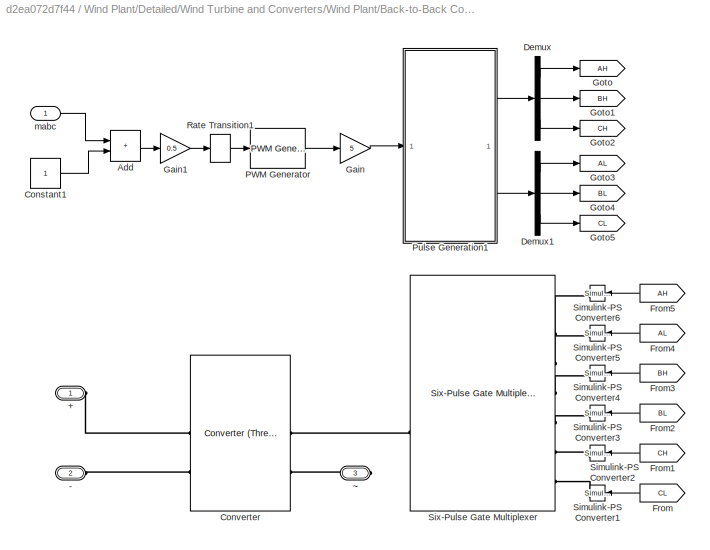
BLOCK [SubSystem] Wind Plant/Detailed/Wind Turbine and Converters/Wind Plant/Back-to-Back Converters/Switching/Grid Side Converter
  PortSchema = {"entries":[{"content":{"sides":[{"content":{"connectorIds":["LConn1","LConn2"]},"type":"ConnectorPlacement.EquallySpacedRectSide","uuid":"e32be008-cebd-46aa-ba62-c5c92b9b23e3"},{"content":{"connectorIds":["In1","RConn1"],"side":"RIGHT"},"type":"ConnectorPlacement.EquallySpacedRectSide","uuid":"c483e451-04b5-4212-bdd1-c589ba5bea78"},{"content":{"side":"TOP"},"type":"ConnectorPlacement.EquallySpace...<+242ch>
BLOCK [PMIOPort] Wind Plant/Detailed/Wind Turbine and Converters/Wind Plant/Back-to-Back Converters/Switching/Grid Side Converter/+
  Side = Left
BLOCK [PMIOPort] Wind Plant/Detailed/Wind Turbine and Converters/Wind Plant/Back-to-Back Converters/Switching/Grid Side Converter/-
  Port = 2
  Side = Left
BLOCK [Sum] Wind Plant/Detailed/Wind Turbine and Converters/Wind Plant/Back-to-Back Converters/Switching/Grid Side Converter/Add
  IconShape = rectangular
BLOCK [Constant] Wind Plant/Detailed/Wind Turbine and Converters/Wind Plant/Back-to-Back Converters/Switching/Grid Side Converter/Constant1
BLOCK [Reference] Wind Plant/Detailed/Wind Turbine and Converters/Wind Plant/Back-to-Back Converters/Switching/Grid Side Converter/Converter  REF=ee_lib/Semiconductors &
Converters/Converters/Converter
(Three-Phase)
  NameLocation = top
  SourceBlock = ee_lib/Semiconductors &\nConverters/Converters/Converter\n(Three-Phase)
  SourceType = Converter\n(Three-Phase)
BLOCK [Demux] Wind Plant/Detailed/Wind Turbine and Converters/Wind Plant/Back-to-Back Converters/Switching/Grid Side Converter/Demux
  Outputs = 3
BLOCK [Demux] Wind Plant/Detailed/Wind Turbine and Converters/Wind Plant/Back-to-Back Converters/Switching/Grid Side Converter/Demux1
  Outputs = 3
BLOCK [From] Wind Plant/Detailed/Wind Turbine and Converters/Wind Plant/Back-to-Back Converters/Switching/Grid Side Converter/From
  GotoTag = CL
  NameLocation = top
BLOCK [From] Wind Plant/Detailed/Wind Turbine and Converters/Wind Plant/Back-to-Back Converters/Switching/Grid Side Converter/From1
  GotoTag = CH
  NameLocation = top
BLOCK [From] Wind Plant/Detailed/Wind Turbine and Converters/Wind Plant/Back-to-Back Converters/Switching/Grid Side Converter/From2
  GotoTag = BL
  NameLocation = top
BLOCK [From] Wind Plant/Detailed/Wind Turbine and Converters/Wind Plant/Back-to-Back Converters/Switching/Grid Side Converter/From3
  GotoTag = BH
  NameLocation = top
BLOCK [From] Wind Plant/Detailed/Wind Turbine and Converters/Wind Plant/Back-to-Back Converters/Switching/Grid Side Converter/From4
  GotoTag = AL
  NameLocation = top
BLOCK [From] Wind Plant/Detailed/Wind Turbine and Converters/Wind Plant/Back-to-Back Converters/Switching/Grid Side Converter/From5
  GotoTag = AH
  NameLocation = top
BLOCK [Gain] Wind Plant/Detailed/Wind Turbine and Converters/Wind Plant/Back-to-Back Converters/Switching/Grid Side Converter/Gain
  Gain = 5
BLOCK [Gain] Wind Plant/Detailed/Wind Turbine and Converters/Wind Plant/Back-to-Back Converters/Switching/Grid Side Converter/Gain1
  Gain = 0.5
BLOCK [Goto] Wind Plant/Detailed/Wind Turbine and Converters/Wind Plant/Back-to-Back Converters/Switching/Grid Side Converter/Goto
  GotoTag = AH
BLOCK [Goto] Wind Plant/Detailed/Wind Turbine and Converters/Wind Plant/Back-to-Back Converters/Switching/Grid Side Converter/Goto1
  GotoTag = BH
BLOCK [Goto] Wind Plant/Detailed/Wind Turbine and Converters/Wind Plant/Back-to-Back Converters/Switching/Grid Side Converter/Goto2
  GotoTag = CH
BLOCK [Goto] Wind Plant/Detailed/Wind Turbine and Converters/Wind Plant/Back-to-Back Converters/Switching/Grid Side Converter/Goto3
  GotoTag = AL
BLOCK [Goto] Wind Plant/Detailed/Wind Turbine and Converters/Wind Plant/Back-to-Back Converters/Switching/Grid Side Converter/Goto4
  GotoTag = BL
BLOCK [Goto] Wind Plant/Detailed/Wind Turbine and Converters/Wind Plant/Back-to-Back Converters/Switching/Grid Side Converter/Goto5
  GotoTag = CL
BLOCK [Reference] Wind Plant/Detailed/Wind Turbine and Converters/Wind Plant/Back-to-Back Converters/Switching/Grid Side Converter/PWM Generator  REF=eePwmGenerator/PWM Generator
  SourceBlock = eePwmGenerator/PWM Generator
  SourceType = PWM Generator
BLOCK [SubSystem] Wind Plant/Detailed/Wind Turbine and Converters/Wind Plant/Back-to-Back Converters/Switching/Grid Side Converter/Pulse Generation1
BLOCK [Constant] Wind Plant/Detailed/Wind Turbine and Converters/Wind Plant/Back-to-Back Converters/Switching/Grid Side Converter/Pulse Generation1/Constant
  Value = 5
BLOCK [Inport] Wind Plant/Detailed/Wind Turbine and Converters/Wind Plant/Back-to-Back Converters/Switching/Grid Side Converter/Pulse Generation1/G
BLOCK [Outport] Wind Plant/Detailed/Wind Turbine and Converters/Wind Plant/Back-to-Back Converters/Switching/Grid Side Converter/Pulse Generation1/G1
  VectorParamsAs1DForOutWhenUnconnected = off
BLOCK [Outport] Wind Plant/Detailed/Wind Turbine and Converters/Wind Plant/Back-to-Back Converters/Switching/Grid Side Converter/Pulse Generation1/G2
  Port = 2
  VectorParamsAs1DForOutWhenUnconnected = off
BLOCK [Sum] Wind Plant/Detailed/Wind Turbine and Converters/Wind Plant/Back-to-Back Converters/Switching/Grid Side Converter/Pulse Generation1/Subtract
  IconShape = rectangular
  Inputs = -+
BLOCK [RateTransition] Wind Plant/Detailed/Wind Turbine and Converters/Wind Plant/Back-to-Back Converters/Switching/Grid Side Converter/Rate Transition1
  OutPortSampleTime = 1/(10*fSw*1000)
BLOCK [Reference] Wind Plant/Detailed/Wind Turbine and Converters/Wind Plant/Back-to-Back Converters/Switching/Grid Side Converter/Simulink-PS Converter1  REF=nesl_utility/Simulink-PS
Converter
  NameLocation = top
  SourceBlock = nesl_utility/Simulink-PS\nConverter
  SourceType = Simulink-PS\nConverter
BLOCK [Reference] Wind Plant/Detailed/Wind Turbine and Converters/Wind Plant/Back-to-Back Converters/Switching/Grid Side Converter/Simulink-PS Converter2  REF=nesl_utility/Simulink-PS
Converter
  NameLocation = top
  SourceBlock = nesl_utility/Simulink-PS\nConverter
  SourceType = Simulink-PS\nConverter
BLOCK [Reference] Wind Plant/Detailed/Wind Turbine and Converters/Wind Plant/Back-to-Back Converters/Switching/Grid Side Converter/Simulink-PS Converter3  REF=nesl_utility/Simulink-PS
Converter
  NameLocation = top
  SourceBlock = nesl_utility/Simulink-PS\nConverter
  SourceType = Simulink-PS\nConverter
BLOCK [Reference] Wind Plant/Detailed/Wind Turbine and Converters/Wind Plant/Back-to-Back Converters/Switching/Grid Side Converter/Simulink-PS Converter4  REF=nesl_utility/Simulink-PS
Converter
  NameLocation = top
  SourceBlock = nesl_utility/Simulink-PS\nConverter
  SourceType = Simulink-PS\nConverter
BLOCK [Reference] Wind Plant/Detailed/Wind Turbine and Converters/Wind Plant/Back-to-Back Converters/Switching/Grid Side Converter/Simulink-PS Converter5  REF=nesl_utility/Simulink-PS
Converter
  NameLocation = top
  SourceBlock = nesl_utility/Simulink-PS\nConverter
  SourceType = Simulink-PS\nConverter
BLOCK [Reference] Wind Plant/Detailed/Wind Turbine and Converters/Wind Plant/Back-to-Back Converters/Switching/Grid Side Converter/Simulink-PS Converter6  REF=nesl_utility/Simulink-PS
Converter
  NameLocation = top
  SourceBlock = nesl_utility/Simulink-PS\nConverter
  SourceType = Simulink-PS\nConverter
BLOCK [Reference] Wind Plant/Detailed/Wind Turbine and Converters/Wind Plant/Back-to-Back Converters/Switching/Grid Side Converter/Six-Pulse Gate Multiplexer  REF=ee_lib/Semiconductors &
Converters/Converters/Six-Pulse Gate
Multiplexer
  NameLocation = top
  SourceBlock = ee_lib/Semiconductors &\nConverters/Converters/Six-Pulse Gate\nMultiplexer
  SourceType = Six-Pulse Gate\nMultiplexer
BLOCK [Inport] Wind Plant/Detailed/Wind Turbine and Converters/Wind Plant/Back-to-Back Converters/Switching/Grid Side Converter/mabc
BLOCK [PMIOPort] Wind Plant/Detailed/Wind Turbine and Converters/Wind Plant/Back-to-Back Converters/Switching/Grid Side Converter/~
  Port = 3
  Side = Right
BLOCK [Inport] Wind Plant/Detailed/Wind Turbine and Converters/Wind Plant/Back-to-Back Converters/Switching/Grid_ref
  Port = 3
BLOCK [Reference] Wind Plant/Detailed/Wind Turbine and Converters/Wind Plant/Back-to-Back Converters/Switching/Ideal Semiconductor Switch  REF=ee_lib/Semiconductors &
Converters/Ideal Semiconductor
Switch
  SourceBlock = ee_lib/Semiconductors &\nConverters/Ideal Semiconductor\nSwitch
  SourceType = Ideal Semiconductor\nSwitch
BLOCK [PMIOPort] Wind Plant/Detailed/Wind Turbine and Converters/Wind Plant/Back-to-Back Converters/Switching/In
  Side = Left
BLOCK [SubSystem] Wind Plant/Detailed/Wind Turbine and Converters/Wind Plant/Back-to-Back Converters/Switching/Machine Side Converter
  PortSchema = {"entries":[{"content":{"sides":[{"content":{"connectorIds":["LConn1","LConn2"]},"type":"ConnectorPlacement.EquallySpacedRectSide","uuid":"e32be008-cebd-46aa-ba62-c5c92b9b23e3"},{"content":{"connectorIds":["In1","RConn1"],"side":"RIGHT"},"type":"ConnectorPlacement.EquallySpacedRectSide","uuid":"c483e451-04b5-4212-bdd1-c589ba5bea78"},{"content":{"side":"TOP"},"type":"ConnectorPlacement.EquallySpace...<+242ch>
BLOCK [PMIOPort] Wind Plant/Detailed/Wind Turbine and Converters/Wind Plant/Back-to-Back Converters/Switching/Machine Side Converter/+
  Side = Left
BLOCK [PMIOPort] Wind Plant/Detailed/Wind Turbine and Converters/Wind Plant/Back-to-Back Converters/Switching/Machine Side Converter/-
  Port = 2
  Side = Left
BLOCK [Sum] Wind Plant/Detailed/Wind Turbine and Converters/Wind Plant/Back-to-Back Converters/Switching/Machine Side Converter/Add
  IconShape = rectangular
BLOCK [Constant] Wind Plant/Detailed/Wind Turbine and Converters/Wind Plant/Back-to-Back Converters/Switching/Machine Side Converter/Constant1
BLOCK [Reference] Wind Plant/Detailed/Wind Turbine and Converters/Wind Plant/Back-to-Back Converters/Switching/Machine Side Converter/Converter  REF=ee_lib/Semiconductors &
Converters/Converters/Converter
(Three-Phase)
  NameLocation = top
  SourceBlock = ee_lib/Semiconductors &\nConverters/Converters/Converter\n(Three-Phase)
  SourceType = Converter\n(Three-Phase)
BLOCK [Demux] Wind Plant/Detailed/Wind Turbine and Converters/Wind Plant/Back-to-Back Converters/Switching/Machine Side Converter/Demux
  Outputs = 3
BLOCK [Demux] Wind Plant/Detailed/Wind Turbine and Converters/Wind Plant/Back-to-Back Converters/Switching/Machine Side Converter/Demux1
  Outputs = 3
BLOCK [From] Wind Plant/Detailed/Wind Turbine and Converters/Wind Plant/Back-to-Back Converters/Switching/Machine Side Converter/From
  GotoTag = CL
  NameLocation = top
BLOCK [From] Wind Plant/Detailed/Wind Turbine and Converters/Wind Plant/Back-to-Back Converters/Switching/Machine Side Converter/From1
  GotoTag = CH
  NameLocation = top
BLOCK [From] Wind Plant/Detailed/Wind Turbine and Converters/Wind Plant/Back-to-Back Converters/Switching/Machine Side Converter/From2
  GotoTag = BL
  NameLocation = top
BLOCK [From] Wind Plant/Detailed/Wind Turbine and Converters/Wind Plant/Back-to-Back Converters/Switching/Machine Side Converter/From3
  GotoTag = BH
  NameLocation = top
BLOCK [From] Wind Plant/Detailed/Wind Turbine and Converters/Wind Plant/Back-to-Back Converters/Switching/Machine Side Converter/From4
  GotoTag = AL
  NameLocation = top
BLOCK [From] Wind Plant/Detailed/Wind Turbine and Converters/Wind Plant/Back-to-Back Converters/Switching/Machine Side Converter/From5
  GotoTag = AH
  NameLocation = top
BLOCK [Gain] Wind Plant/Detailed/Wind Turbine and Converters/Wind Plant/Back-to-Back Converters/Switching/Machine Side Converter/Gain
  Gain = 5
BLOCK [Gain] Wind Plant/Detailed/Wind Turbine and Converters/Wind Plant/Back-to-Back Converters/Switching/Machine Side Converter/Gain1
  Gain = 0.5
BLOCK [Goto] Wind Plant/Detailed/Wind Turbine and Converters/Wind Plant/Back-to-Back Converters/Switching/Machine Side Converter/Goto
  GotoTag = AH
BLOCK [Goto] Wind Plant/Detailed/Wind Turbine and Converters/Wind Plant/Back-to-Back Converters/Switching/Machine Side Converter/Goto1
  GotoTag = BH
BLOCK [Goto] Wind Plant/Detailed/Wind Turbine and Converters/Wind Plant/Back-to-Back Converters/Switching/Machine Side Converter/Goto2
  GotoTag = CH
BLOCK [Goto] Wind Plant/Detailed/Wind Turbine and Converters/Wind Plant/Back-to-Back Converters/Switching/Machine Side Converter/Goto3
  GotoTag = AL
BLOCK [Goto] Wind Plant/Detailed/Wind Turbine and Converters/Wind Plant/Back-to-Back Converters/Switching/Machine Side Converter/Goto4
  GotoTag = BL
BLOCK [Goto] Wind Plant/Detailed/Wind Turbine and Converters/Wind Plant/Back-to-Back Converters/Switching/Machine Side Converter/Goto5
  GotoTag = CL
BLOCK [Reference] Wind Plant/Detailed/Wind Turbine and Converters/Wind Plant/Back-to-Back Converters/Switching/Machine Side Converter/PWM Generator  REF=eePwmGenerator/PWM Generator
  SourceBlock = eePwmGenerator/PWM Generator
  SourceType = PWM Generator
BLOCK [SubSystem] Wind Plant/Detailed/Wind Turbine and Converters/Wind Plant/Back-to-Back Converters/Switching/Machine Side Converter/Pulse Generation
BLOCK [Constant] Wind Plant/Detailed/Wind Turbine and Converters/Wind Plant/Back-to-Back Converters/Switching/Machine Side Converter/Pulse Generation/Constant
  Value = 5
BLOCK [Inport] Wind Plant/Detailed/Wind Turbine and Converters/Wind Plant/Back-to-Back Converters/Switching/Machine Side Converter/Pulse Generation/G
BLOCK [Outport] Wind Plant/Detailed/Wind Turbine and Converters/Wind Plant/Back-to-Back Converters/Switching/Machine Side Converter/Pulse Generation/G1
  VectorParamsAs1DForOutWhenUnconnected = off
BLOCK [Outport] Wind Plant/Detailed/Wind Turbine and Converters/Wind Plant/Back-to-Back Converters/Switching/Machine Side Converter/Pulse Generation/G2
  Port = 2
  VectorParamsAs1DForOutWhenUnconnected = off
BLOCK [Sum] Wind Plant/Detailed/Wind Turbine and Converters/Wind Plant/Back-to-Back Converters/Switching/Machine Side Converter/Pulse Generation/Subtract
  IconShape = rectangular
  Inputs = -+
BLOCK [RateTransition] Wind Plant/Detailed/Wind Turbine and Converters/Wind Plant/Back-to-Back Converters/Switching/Machine Side Converter/Rate Transition1
  OutPortSampleTime = 1/(10*fSw*1000)
BLOCK [Reference] Wind Plant/Detailed/Wind Turbine and Converters/Wind Plant/Back-to-Back Converters/Switching/Machine Side Converter/Simulink-PS Converter1  REF=nesl_utility/Simulink-PS
Converter
  NameLocation = top
  SourceBlock = nesl_utility/Simulink-PS\nConverter
  SourceType = Simulink-PS\nConverter
BLOCK [Reference] Wind Plant/Detailed/Wind Turbine and Converters/Wind Plant/Back-to-Back Converters/Switching/Machine Side Converter/Simulink-PS Converter2  REF=nesl_utility/Simulink-PS
Converter
  NameLocation = top
  SourceBlock = nesl_utility/Simulink-PS\nConverter
  SourceType = Simulink-PS\nConverter
BLOCK [Reference] Wind Plant/Detailed/Wind Turbine and Converters/Wind Plant/Back-to-Back Converters/Switching/Machine Side Converter/Simulink-PS Converter3  REF=nesl_utility/Simulink-PS
Converter
  NameLocation = top
  SourceBlock = nesl_utility/Simulink-PS\nConverter
  SourceType = Simulink-PS\nConverter
BLOCK [Reference] Wind Plant/Detailed/Wind Turbine and Converters/Wind Plant/Back-to-Back Converters/Switching/Machine Side Converter/Simulink-PS Converter4  REF=nesl_utility/Simulink-PS
Converter
  NameLocation = top
  SourceBlock = nesl_utility/Simulink-PS\nConverter
  SourceType = Simulink-PS\nConverter
BLOCK [Reference] Wind Plant/Detailed/Wind Turbine and Converters/Wind Plant/Back-to-Back Converters/Switching/Machine Side Converter/Simulink-PS Converter5  REF=nesl_utility/Simulink-PS
Converter
  NameLocation = top
  SourceBlock = nesl_utility/Simulink-PS\nConverter
  SourceType = Simulink-PS\nConverter
BLOCK [Reference] Wind Plant/Detailed/Wind Turbine and Converters/Wind Plant/Back-to-Back Converters/Switching/Machine Side Converter/Simulink-PS Converter6  REF=nesl_utility/Simulink-PS
Converter
  NameLocation = top
  SourceBlock = nesl_utility/Simulink-PS\nConverter
  SourceType = Simulink-PS\nConverter
BLOCK [Reference] Wind Plant/Detailed/Wind Turbine and Converters/Wind Plant/Back-to-Back Converters/Switching/Machine Side Converter/Six-Pulse Gate Multiplexer  REF=ee_lib/Semiconductors &
Converters/Converters/Six-Pulse Gate
Multiplexer
  NameLocation = top
  SourceBlock = ee_lib/Semiconductors &\nConverters/Converters/Six-Pulse Gate\nMultiplexer
  SourceType = Six-Pulse Gate\nMultiplexer
BLOCK [Inport] Wind Plant/Detailed/Wind Turbine and Converters/Wind Plant/Back-to-Back Converters/Switching/Machine Side Converter/mabc
BLOCK [PMIOPort] Wind Plant/Detailed/Wind Turbine and Converters/Wind Plant/Back-to-Back Converters/Switching/Machine Side Converter/~
  Port = 3
  Side = Right
BLOCK [Reference] Wind Plant/Detailed/Wind Turbine and Converters/Wind Plant/Back-to-Back Converters/Switching/PS-Simulink Converter1  REF=nesl_utility/PS-Simulink
Converter
  NameLocation = top
  SourceBlock = nesl_utility/PS-Simulink\nConverter
  SourceType = PS-Simulink\nConverter
BLOCK [Reference] Wind Plant/Detailed/Wind Turbine and Converters/Wind Plant/Back-to-Back Converters/Switching/Resistor  REF=fl_lib/Electrical/Electrical Elements/Resistor
  SourceBlock = fl_lib/Electrical/Electrical Elements/Resistor
  SourceType = Resistor
BLOCK [Inport] Wind Plant/Detailed/Wind Turbine and Converters/Wind Plant/Back-to-Back Converters/Switching/SM_ref
  NameLocation = top
  Port = 2
BLOCK [Scope] Wind Plant/Detailed/Wind Turbine and Converters/Wind Plant/Back-to-Back Converters/Switching/Scope
  ActiveDisplayYMaximum = 1.125
  ActiveDisplayYMinimum = -0.125
  DataLoggingVariableName = ScopeData11
  Floating = off
  GraphicalSettings = {"GraphicalSettings":{"LegacySettings":true,"Style":{"Style":{"AxesColor":"[0 0 0]","ChannelNames":[""],"ColorOrder":"[1 0.909803921568627 0.392156862745098;0.149019607843137 0.549019607843137 0.866666666666667;0.96078431372549 0.466666666666667 0.16078431372549;0.286274509803922 0.858823529411765 0.250980392156863;0.752941176470588 0.36078431372549 0.984313725490196;0.423529411764706 0.9568627450...<+476ch>
  MultipleDisplayCache = [{"MaxYLimMag":1.125,"MaxYLimReal":1.125,"MinYLimMag":0,"MinYLimReal":-0.125,"PlotAsMagnitudePhase":false,"ShowGrid":true,"ShowLegend":false,"Title":"%<SignalLabel>","YLabel":""}]
  NumInputPorts = 1
  WasSavedAsWebScope = on
BLOCK [Reference] Wind Plant/Detailed/Wind Turbine and Converters/Wind Plant/Back-to-Back Converters/Switching/Simulink-PS Converter2  REF=nesl_utility/Simulink-PS
Converter
  SourceBlock = nesl_utility/Simulink-PS\nConverter
  SourceType = Simulink-PS\nConverter
BLOCK [Outport] Wind Plant/Detailed/Wind Turbine and Converters/Wind Plant/Back-to-Back Converters/Switching/Vdc
  NameLocation = top
BLOCK [Reference] Wind Plant/Detailed/Wind Turbine and Converters/Wind Plant/Back-to-Back Converters/Switching/Voltage Sensor  REF=fl_lib/Electrical/Electrical Sensors/Voltage Sensor
  NameLocation = left
  SourceBlock = fl_lib/Electrical/Electrical Sensors/Voltage Sensor
  SourceType = Voltage Sensor
BLOCK [PMIOPort] Wind Plant/Detailed/Wind Turbine and Converters/Wind Plant/Back-to-Back Converters/Switching/~
  Port = 2
  Side = Right
BLOCK [Outport] Wind Plant/Detailed/Wind Turbine and Converters/Wind Plant/Back-to-Back Converters/Vdc
BLOCK [PMIOPort] Wind Plant/Detailed/Wind Turbine and Converters/Wind Plant/Back-to-Back Converters/~
  Port = 2
  Side = Right
BLOCK [Outport] Wind Plant/Detailed/Wind Turbine and Converters/Wind Plant/BusElementOut
BLOCK [Outport] Wind Plant/Detailed/Wind Turbine and Converters/Wind Plant/BusElementOut1
BLOCK [Outport] Wind Plant/Detailed/Wind Turbine and Converters/Wind Plant/BusElementOut2
  Port = 2
BLOCK [Inport] Wind Plant/Detailed/Wind Turbine and Converters/Wind Plant/Chopper
  Port = 3
BLOCK [Reference] Wind Plant/Detailed/Wind Turbine and Converters/Wind Plant/Current Sensor  REF=ee_lib/Sensors &
Transducers/Current Sensor
(Three-Phase)
  SourceBlock = ee_lib/Sensors &\nTransducers/Current Sensor\n(Three-Phase)
  SourceType = Current Sensor\n(Three-Phase)
BLOCK [Inport] Wind Plant/Detailed/Wind Turbine and Converters/Wind Plant/Grid
  Port = 5
BLOCK [Reference] Wind Plant/Detailed/Wind Turbine and Converters/Wind Plant/Ideal Torque Sensor  REF=fl_lib/Mechanical/Mechanical Sensors/Ideal Torque Sensor
  SourceBlock = fl_lib/Mechanical/Mechanical Sensors/Ideal Torque Sensor
  SourceType = Ideal Torque Sensor
BLOCK [Inport] Wind Plant/Detailed/Wind Turbine and Converters/Wind Plant/Machine
  Port = 4
BLOCK [Reference] Wind Plant/Detailed/Wind Turbine and Converters/Wind Plant/Mechanical Rotational Reference2  REF=fl_lib/Mechanical/Rotational Elements/Mechanical
Rotational Reference
  SourceBlock = fl_lib/Mechanical/Rotational Elements/Mechanical\nRotational Reference
  SourceType = Mechanical\nRotational Reference
BLOCK [Reference] Wind Plant/Detailed/Wind Turbine and Converters/Wind Plant/Mechanical Rotational Reference3  REF=fl_lib/Mechanical/Rotational Elements/Mechanical
Rotational Reference
  NameLocation = right
  SourceBlock = fl_lib/Mechanical/Rotational Elements/Mechanical\nRotational Reference
  SourceType = Mechanical\nRotational Reference
BLOCK [Outport] Wind Plant/Detailed/Wind Turbine and Converters/Wind Plant/Out Bus Element
  Port = 2
BLOCK [Outport] Wind Plant/Detailed/Wind Turbine and Converters/Wind Plant/Out Bus Element2
BLOCK [Outport] Wind Plant/Detailed/Wind Turbine and Converters/Wind Plant/Out Bus Element3
BLOCK [Reference] Wind Plant/Detailed/Wind Turbine and Converters/Wind Plant/PMSG  REF=ee_lib/Electromechanical/Permanent Magnet/PMSM
  SourceBlock = ee_lib/Electromechanical/Permanent Magnet/PMSM
  SourceType = PMSM
BLOCK [Reference] Wind Plant/Detailed/Wind Turbine and Converters/Wind Plant/PS-Simulink Converter  REF=nesl_utility/PS-Simulink
Converter
  SourceBlock = nesl_utility/PS-Simulink\nConverter
  SourceType = PS-Simulink\nConverter
BLOCK [Reference] Wind Plant/Detailed/Wind Turbine and Converters/Wind Plant/PS-Simulink Converter1  REF=nesl_utility/PS-Simulink
Converter
  NameLocation = left
  SourceBlock = nesl_utility/PS-Simulink\nConverter
  SourceType = PS-Simulink\nConverter
BLOCK [Reference] Wind Plant/Detailed/Wind Turbine and Converters/Wind Plant/PS-Simulink Converter5  REF=nesl_utility/PS-Simulink
Converter
  SourceBlock = nesl_utility/PS-Simulink\nConverter
  SourceType = PS-Simulink\nConverter
BLOCK [Reference] Wind Plant/Detailed/Wind Turbine and Converters/Wind Plant/PS-Simulink Converter7  REF=nesl_utility/PS-Simulink
Converter
  NameLocation = right
  SourceBlock = nesl_utility/PS-Simulink\nConverter
  SourceType = PS-Simulink\nConverter
BLOCK [Inport] Wind Plant/Detailed/Wind Turbine and Converters/Wind Plant/Pitch
BLOCK [Reference] Wind Plant/Detailed/Wind Turbine and Converters/Wind Plant/Rotational Motion Sensor  REF=fl_lib/Mechanical/Mechanical Sensors/Ideal Rotational
Motion Sensor
  NameLocation = right
  SourceBlock = fl_lib/Mechanical/Mechanical Sensors/Ideal Rotational\nMotion Sensor
  SourceType = Ideal Rotational\nMotion Sensor
BLOCK [Scope] Wind Plant/Detailed/Wind Turbine and Converters/Wind Plant/Scope1
  ActiveDisplayYMaximum = 6362.825931701329
  ActiveDisplayYMinimum = -6255.05498425373
  DataLoggingVariableName = ScopeData6
  Floating = off
  GraphicalSettings = {"Style":{"BackgroundColor":[0.12941176470588237,0.12941176470588237,0.12941176470588237],"AxesColor":[0.07058823529411765,0.07058823529411765,0.07058823529411765],"LabelsColor":[0.8509803921568627,0.8509803921568627,0.8509803921568627],"PreserveColors":false,"Visible":[true,true,true],"LineStyle":["-","-","-"],"LineWidth":[1.5,1.5,1.5],"BarWidth":[0.9,0.9,0.9],"LineColor":["auto","auto","auto"],"...<+2316ch>
  MultipleDisplayCache = [{"MaxYLimMag":14855.10349828715,"MaxYLimReal":6362.825931701329,"MinYLimMag":0,"MinYLimReal":-6255.05498425373,"PlotAsMagnitudePhase":false,"ShowGrid":true,"ShowLegend":false,"Title":"%<SignalLabel>","YLabel":""}]
  NumInputPorts = 1
  ScopeFrameLocation = window
  WasSavedAsWebScope = on
  WindowPosition = [360.000000,150.000000,560.000000,420.000000,]
BLOCK [Reference] Wind Plant/Detailed/Wind Turbine and Converters/Wind Plant/Simulink-PS Converter  REF=nesl_utility/Simulink-PS
Converter
  SourceBlock = nesl_utility/Simulink-PS\nConverter
  SourceType = Simulink-PS\nConverter
BLOCK [Reference] Wind Plant/Detailed/Wind Turbine and Converters/Wind Plant/Simulink-PS Converter1  REF=nesl_utility/Simulink-PS
Converter
  SourceBlock = nesl_utility/Simulink-PS\nConverter
  SourceType = Simulink-PS\nConverter
BLOCK [UnitDelay] Wind Plant/Detailed/Wind Turbine and Converters/Wind Plant/Unit Delay
  HasFrameUpgradeWarning = on
  SampleTime = -1
BLOCK [Reference] Wind Plant/Detailed/Wind Turbine and Converters/Wind Plant/Wind Turbine  REF=ee_lib/Electromechanical/Wind Turbine
(Mechanical)
  SourceBlock = ee_lib/Electromechanical/Wind Turbine\n(Mechanical)
  SourceType = Wind Turbine\n(Mechanical)
BLOCK [Inport] Wind Plant/Detailed/Wind Turbine and Converters/Wind Plant/Wind speed
  Port = 2
BLOCK [PMIOPort] Wind Plant/Detailed/Wind Turbine and Converters/Wind Plant/~
  NameLocation = top
  Side = Right
BLOCK [Inport] Wind Plant/Detailed/Wind Turbine and Converters/Wind_speed
  Port = 2
BLOCK [Inport] Wind Plant/Detailed/Wind Turbine and Converters/pitch
BLOCK [PMIOPort] Wind Plant/Detailed/Wind Turbine and Converters/~
  NameLocation = top
  Side = Right
BLOCK [Inport] Wind Plant/Detailed/WindSpeed
  Port = 3
BLOCK [PMIOPort] Wind Plant/Detailed/~
  NameLocation = top
  Side = Right
BLOCK [Inport] Wind Plant/LVRT
BLOCK [Outport] Wind Plant/Meas
BLOCK [Inport] Wind Plant/QRef
  Port = 2
BLOCK [SubSystem] Wind Plant/Simplified
  VariantControl = Simplified
BLOCK [Outport] Wind Plant/Simplified/BusElementOut
BLOCK [Outport] Wind Plant/Simplified/BusElementOut1
BLOCK [Outport] Wind Plant/Simplified/BusElementOut2
BLOCK [Inport] Wind Plant/Simplified/LVRT
BLOCK [SubSystem] Wind Plant/Simplified/Measurements
BLOCK [Reference] Wind Plant/Simplified/Measurements/Current and Voltage Sensor (Three-Phase)5  REF=ee_lib/Sensors &
Transducers/Current and Voltage
Sensor (Three-Phase)
  SourceBlock = ee_lib/Sensors &\nTransducers/Current and Voltage\nSensor (Three-Phase)
  SourceType = Current and Voltage\nSensor (Three-Phase)
BLOCK [Gain] Wind Plant/Simplified/Measurements/Gain
  Gain = 1/(plantRating*1000)
BLOCK [Gain] Wind Plant/Simplified/Measurements/Gain1
  Gain = 1/(plantRating*1000)
BLOCK [Outport] Wind Plant/Simplified/Measurements/I
  Port = 4
BLOCK [PMIOPort] Wind Plant/Simplified/Measurements/In
  Side = Left
BLOCK [Reference] Wind Plant/Simplified/Measurements/Low-Pass Filter (Discrete or Continuous)1  REF=eeGeneralControl/Low-Pass Filter
(Discrete or Continuous)
  SourceBlock = eeGeneralControl/Low-Pass Filter\n(Discrete or Continuous)
  SourceType = Low-Pass Filter (Discrete or Continuous)
BLOCK [Reference] Wind Plant/Simplified/Measurements/Low-Pass Filter (Discrete or Continuous)2  REF=eeGeneralControl/Low-Pass Filter
(Discrete or Continuous)
  SourceBlock = eeGeneralControl/Low-Pass Filter\n(Discrete or Continuous)
  SourceType = Low-Pass Filter (Discrete or Continuous)
BLOCK [Outport] Wind Plant/Simplified/Measurements/P
BLOCK [Reference] Wind Plant/Simplified/Measurements/PS-Simulink Converter  REF=nesl_utility/PS-Simulink
Converter
  SourceBlock = nesl_utility/PS-Simulink\nConverter
  SourceType = PS-Simulink\nConverter
BLOCK [Reference] Wind Plant/Simplified/Measurements/PS-Simulink Converter1  REF=nesl_utility/PS-Simulink
Converter
  SourceBlock = nesl_utility/PS-Simulink\nConverter
  SourceType = PS-Simulink\nConverter
BLOCK [Reference] Wind Plant/Simplified/Measurements/PS-Simulink Converter2  REF=nesl_utility/PS-Simulink
Converter
  SourceBlock = nesl_utility/PS-Simulink\nConverter
  SourceType = PS-Simulink\nConverter
BLOCK [Reference] Wind Plant/Simplified/Measurements/PS-Simulink Converter3  REF=nesl_utility/PS-Simulink
Converter
  SourceBlock = nesl_utility/PS-Simulink\nConverter
  SourceType = PS-Simulink\nConverter
BLOCK [Reference] Wind Plant/Simplified/Measurements/Power Sensor (Three-Phase)  REF=ee_lib/Sensors &
Transducers/Power Sensor
(Three-Phase)
  SourceBlock = ee_lib/Sensors &\nTransducers/Power Sensor\n(Three-Phase)
  SourceType = Power Sensor\n(Three-Phase)
BLOCK [Outport] Wind Plant/Simplified/Measurements/Q
  Port = 2
BLOCK [Outport] Wind Plant/Simplified/Measurements/V
  Port = 3
BLOCK [PMIOPort] Wind Plant/Simplified/Measurements/~
  Port = 2
  Side = Right
BLOCK [Outport] Wind Plant/Simplified/Out Bus Element
BLOCK [Reference] Wind Plant/Simplified/PS Constant  REF=fl_lib/Physical Signals/Sources/PS Constant
  SourceBlock = fl_lib/Physical Signals/Sources/PS Constant
  SourceType = PS Constant
BLOCK [Inport] Wind Plant/Simplified/QRef
  Port = 2
BLOCK [Reference] Wind Plant/Simplified/Simulink-PS Converter  REF=nesl_utility/Simulink-PS
Converter
  SourceBlock = nesl_utility/Simulink-PS\nConverter
  SourceType = Simulink-PS\nConverter
BLOCK [Terminator] Wind Plant/Simplified/Terminator
BLOCK [Terminator] Wind Plant/Simplified/Terminator1
BLOCK [Reference] Wind Plant/Simplified/Wind farm  REF=custom_lib/wind_farm  (lib defined in slx_304375ac1573)
  SourceBlock = custom_lib/wind_farm
  SourceType = wind_farm
BLOCK [Inport] Wind Plant/Simplified/WindSpeed
  Port = 3
BLOCK [PMIOPort] Wind Plant/Simplified/~
  NameLocation = top
  Side = Right
BLOCK [Inport] Wind Plant/WindSpeed
  Port = 3
BLOCK [PMIOPort] Wind Plant/~
  Side = Right
ANNOTATION Wind Plant/Detailed/Wind Turbine and Converters: Plant
ANNOTATION Wind Plant/Detailed/Wind Turbine and Converters: Controller
ANNOTATION Wind Plant/Detailed/Wind Turbine and Converters/Signal Conditioning: 2
ANNOTATION Wind Plant/Detailed/Wind Turbine and Converters/Wind Controller/Machine Converter Control/Subsystem: LVRT Crowbar Control
ANNOTATION Wind Plant/Detailed/Wind Turbine and Converters/Wind Controller/Wind Grid-side Converter Controller/DC Bus Chopper control : LVRT Detection
ANNOTATION Wind Plant/Detailed/Wind Turbine and Converters/Wind Controller/Wind Grid-side Converter Controller/DC voltage controller & current reference: Limiter
ANNOTATION Wind Plant/Detailed/Wind Turbine and Converters/Wind Controller/Wind Grid-side Converter Controller/DC voltage controller & current reference: id_ref_generator
ANNOTATION Wind Plant/Detailed/Wind Turbine and Converters/Wind Controller/Wind Grid-side Converter Controller/DC voltage controller & current reference: iq_ref_generator
LINE Bus Selector:1 -> Scope:1
LINE Bus Selector:2 -> Scope:2
LINE Constant1:1 -> Wind Plant:3
LINE Constant2:1 -> Wind Plant:1
LINE Constant:1 -> Wind Plant:2
LINE Wind Plant:1 -> Bus Selector:1
PNET net1: Electrical Reference:LConn1 -- Solver Configuration:RConn1 -- Voltage Source (Three-Phase):LConn1
PLINE Two-Winding Transformer (Three-Phase):LConn1 -- Wind Plant:RConn1
PLINE Two-Winding Transformer (Three-Phase):RConn1 -- Voltage Source (Three-Phase):RConn1
note: PNET lines group multi-terminal physical nets as a canonical sorted terminal list (undirected conserving connections); 2-terminal nets keep the pairwise PLINE form
